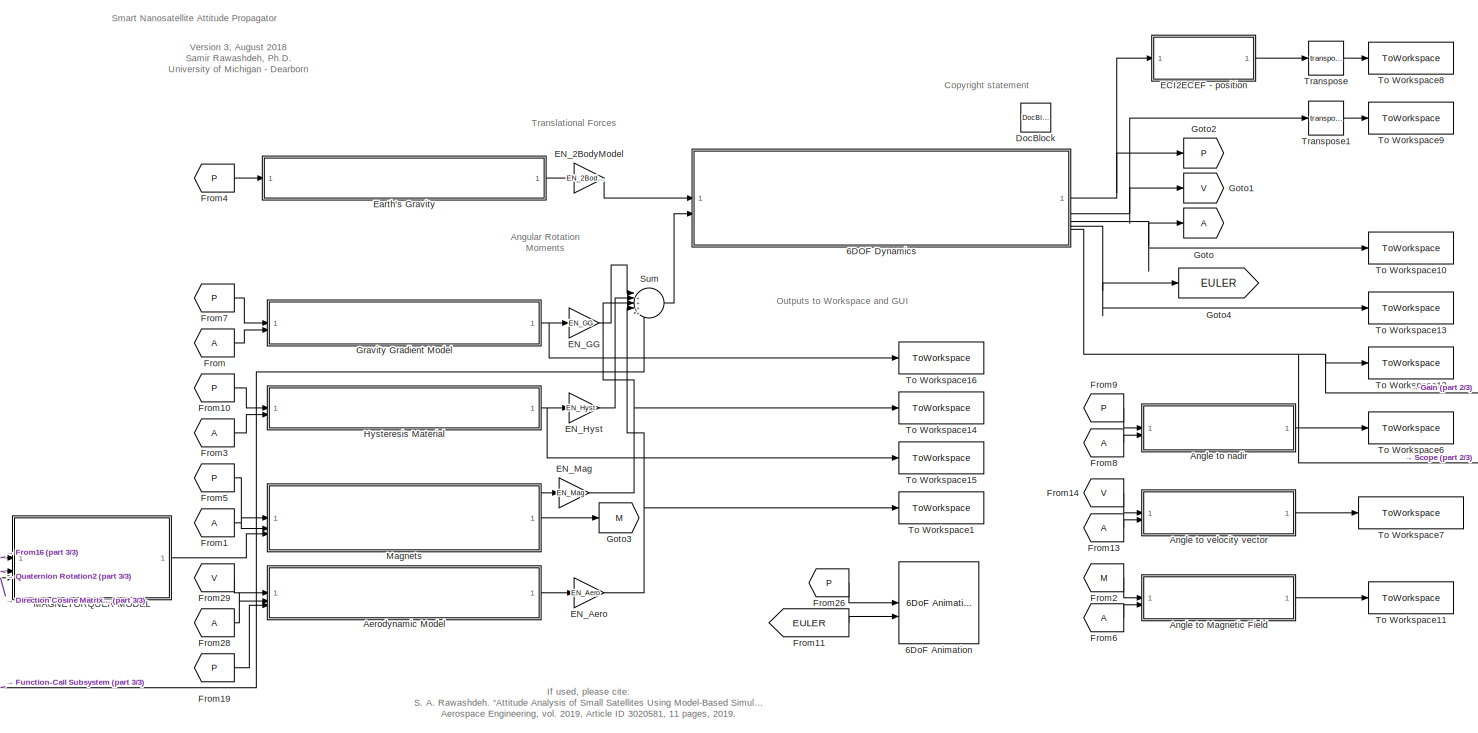
[diagram: root canvas - part 1/3, central region]
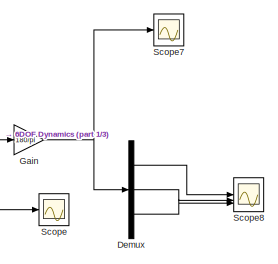
[diagram: root canvas - part 2/3, middle right region]
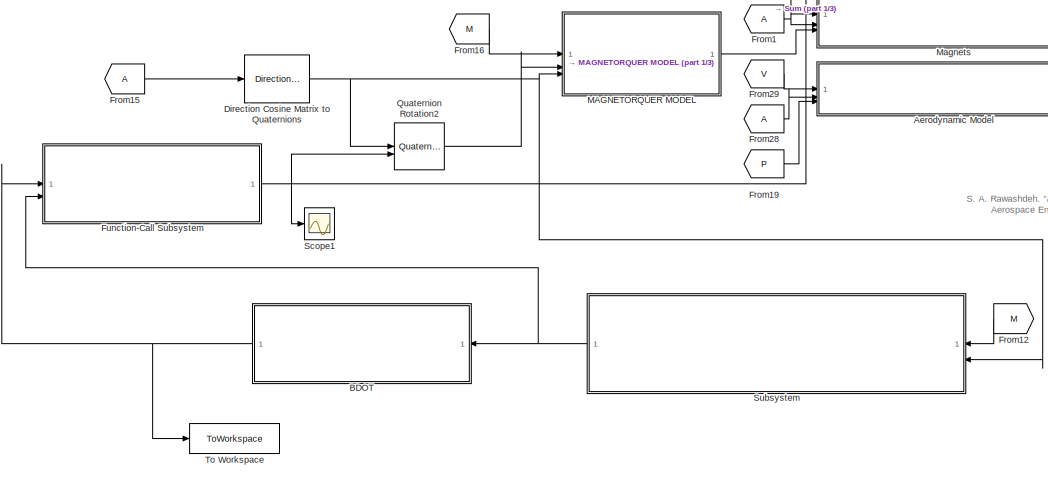
[diagram: root canvas - part 3/3, bottom left region]
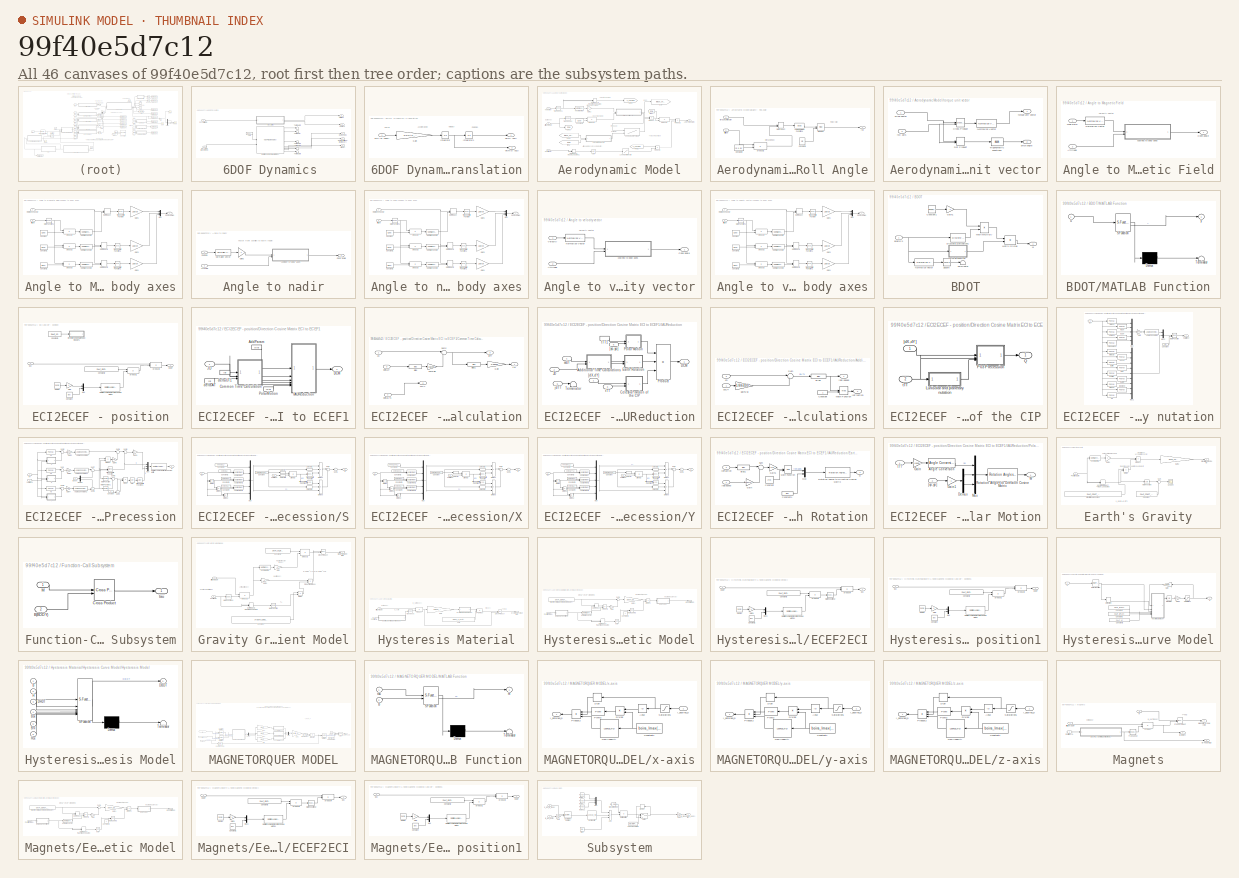
[diagram: thumbnail index - all 46 canvases of the model, root first then tree order]
MODEL slx_99f40e5d7c12
KIND model
CONFIG AbsTol = auto
CONFIG EnableMultiTasking = on
CONFIG FixedStep = 0.1
CONFIG InitFcn = SNAP_Simulink_Init_Function
CONFIG MaxStep = 10
CONFIG MinStep = 0.01
CONFIG RelTol = 1e-2
CONFIG SampleTimeConstraint = Unconstrained
CONFIG SolverName = ode45
CONFIG StartTime = 0.0
CONFIG StopTime = SNAP_sim_length
BLOCK [SubSystem] 6DOF Dynamics 
BLOCK [Outport] 6DOF Dynamics /DCMbe (Attitude) [ECI to Body]
  Port = 3
BLOCK [Outport] 6DOF Dynamics /Euler Angles
  Port = 4
BLOCK [Inport] 6DOF Dynamics /Fxyz (N)  [ECI]
BLOCK [Inport] 6DOF Dynamics /Mxyz (N.m) [Body-fixed]
  Port = 2
BLOCK [Reference] 6DOF Dynamics /Rotations - 6DoF (Quaternion)  REF=aerolibobsolete/6DoF (Euler Angles)
  SourceBlock = aerolibobsolete/6DoF (Euler Angles)
  SourceType = 6DoF EoM (Body Axis)
BLOCK [Terminator] 6DOF Dynamics /Terminator
BLOCK [Terminator] 6DOF Dynamics /Terminator1
BLOCK [Terminator] 6DOF Dynamics /Terminator2
BLOCK [Terminator] 6DOF Dynamics /Terminator3
BLOCK [Terminator] 6DOF Dynamics /Terminator5
BLOCK [SubSystem] 6DOF Dynamics /Translation
BLOCK [Inport] 6DOF Dynamics /Translation/Fxyz (N) (inECI)
BLOCK [Gain] 6DOF Dynamics /Translation/Gain
  Gain = 1/SNAP_sat_mass
BLOCK [Integrator] 6DOF Dynamics /Translation/Integrator
  InitialCondition = initial_velocity
BLOCK [Integrator] 6DOF Dynamics /Translation/Integrator1
  InitialCondition = initial_position
BLOCK [Outport] 6DOF Dynamics /Translation/Ve(m//s) (ECI)
  Port = 2
BLOCK [Outport] 6DOF Dynamics /Translation/Xe(m) (ECI)
BLOCK [Outport] 6DOF Dynamics /V (m//s) [ECI]
  Port = 2
BLOCK [Outport] 6DOF Dynamics /X (m) [ECI]
BLOCK [Outport] 6DOF Dynamics /w (rad//s)
  Port = 5
BLOCK [Constant] 6DOF Dynamics /zero
  Value = [0 0 0]
BLOCK [Reference] 6DoF Animation  REF=aerolibanim/6DoF Animation
  SourceBlock = aerolibanim/6DoF Animation
  SourceType = 6DoF_Animation
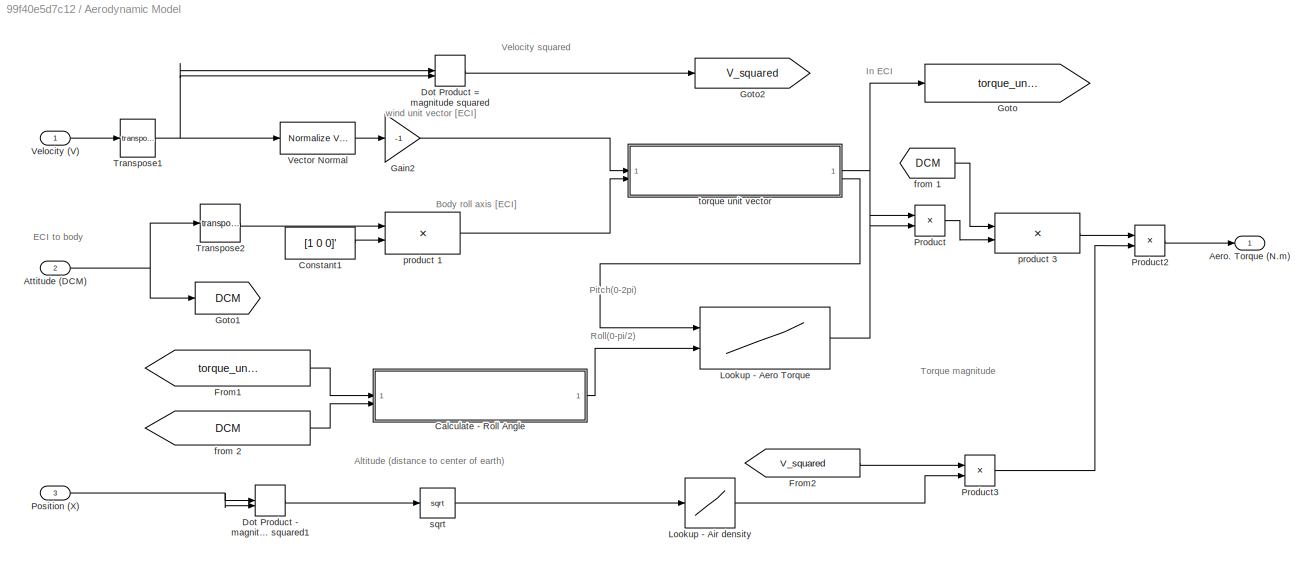
BLOCK [SubSystem] Aerodynamic Model
BLOCK [Outport] Aerodynamic Model/Aero. Torque (N.m)
BLOCK [Inport] Aerodynamic Model/Attitude (DCM)
  Port = 2
BLOCK [SubSystem] Aerodynamic Model/Calculate - Roll Angle
BLOCK [Constant] Aerodynamic Model/Calculate - Roll Angle/Constant2
  Value = [0 1 0]'
BLOCK [Constant] Aerodynamic Model/Calculate - Roll Angle/Constant3
  Value = pi/2
BLOCK [DotProduct] Aerodynamic Model/Calculate - Roll Angle/Dot Product
  OutDataTypeStr = Inherit: Inherit via internal rule
BLOCK [Math] Aerodynamic Model/Calculate - Roll Angle/Modulus
  Operator = mod
  SignedPower = on
BLOCK [Trigonometry] Aerodynamic Model/Calculate - Roll Angle/Trigonometric Function1
  Operator = acos
BLOCK [Inport] Aerodynamic Model/Calculate - Roll Angle/attitude
  Port = 2
BLOCK [Product] Aerodynamic Model/Calculate - Roll Angle/product 2
  Multiplication = Matrix(*)
  RndMeth = Zero
BLOCK [Outport] Aerodynamic Model/Calculate - Roll Angle/roll
BLOCK [Inport] Aerodynamic Model/Calculate - Roll Angle/torque unit vector
BLOCK [Constant] Aerodynamic Model/Constant1
  Value = [1 0 0]'
BLOCK [DotProduct] Aerodynamic Model/Dot Product - magnitude squared1
  OutDataTypeStr = Inherit: Inherit via internal rule
BLOCK [DotProduct] Aerodynamic Model/Dot Product = magnitude squared
  OutDataTypeStr = Inherit: Inherit via internal rule
BLOCK [From] Aerodynamic Model/From1
  CloseFcn = tagdialog Close
  GotoTag = torque_unit_vector
BLOCK [From] Aerodynamic Model/From2
  CloseFcn = tagdialog Close
  GotoTag = V_squared
BLOCK [Gain] Aerodynamic Model/Gain2
  Gain = -1
BLOCK [Goto] Aerodynamic Model/Goto
  GotoTag = torque_unit_vector
BLOCK [Goto] Aerodynamic Model/Goto1
  GotoTag = DCM
BLOCK [Goto] Aerodynamic Model/Goto2
  GotoTag = V_squared
BLOCK [Lookup2D] Aerodynamic Model/Lookup - Aero Torque
  ColumnIndex = SNAPaero.roll
  InputSameDT = off
  RowIndex = SNAPaero.pitch
  SaturateOnIntegerOverflow = off
  Table = SNAPaero.T
BLOCK [Lookup] Aerodynamic Model/Lookup - Air density
  InputValues = SNAPaero.alt_range*1000 + SNAP_CONST_r_earth
  SaturateOnIntegerOverflow = off
  Table = SNAPaero.av_density_vs_alt
BLOCK [Inport] Aerodynamic Model/Position (X)
  Port = 3
BLOCK [Product] Aerodynamic Model/Product
  RndMeth = Zero
BLOCK [Product] Aerodynamic Model/Product2
  RndMeth = Zero
BLOCK [Product] Aerodynamic Model/Product3
  RndMeth = Zero
BLOCK [Math] Aerodynamic Model/Transpose1
  Operator = transpose
  SignedPower = on
BLOCK [Math] Aerodynamic Model/Transpose2
  Operator = transpose
  SignedPower = on
BLOCK [Reference] Aerodynamic Model/Vector Normal  REF=vrlib/Utilities/Normalize Vector
  SourceBlock = vrlib/Utilities/Normalize Vector
  SourceType = Normalize Vector
BLOCK [Inport] Aerodynamic Model/Velocity  (V)
BLOCK [From] Aerodynamic Model/from 1
  CloseFcn = tagdialog Close
  GotoTag = DCM
BLOCK [From] Aerodynamic Model/from 2
  CloseFcn = tagdialog Close
  GotoTag = DCM
BLOCK [Product] Aerodynamic Model/product 1
  Multiplication = Matrix(*)
  RndMeth = Zero
BLOCK [Product] Aerodynamic Model/product 3
  Multiplication = Matrix(*)
  RndMeth = Zero
BLOCK [Math] Aerodynamic Model/sqrt
  Operator = sqrt
  SignedPower = on
BLOCK [SubSystem] Aerodynamic Model/torque unit vector
BLOCK [Reference] Aerodynamic Model/torque unit vector/Cross Product  REF=vrlib/Utilities/Cross Product
  SourceBlock = vrlib/Utilities/Cross Product
  SourceType = Cross Product
BLOCK [DotProduct] Aerodynamic Model/torque unit vector/Dot Product
  OutDataTypeStr = Inherit: Inherit via internal rule
BLOCK [Reference] Aerodynamic Model/torque unit vector/Normalize Vector  REF=vrlib/Utilities/Normalize Vector
  SourceBlock = vrlib/Utilities/Normalize Vector
  SourceType = Normalize Vector
BLOCK [Trigonometry] Aerodynamic Model/torque unit vector/Trigonometric Function2
  Operator = acos
BLOCK [Outport] Aerodynamic Model/torque unit vector/pitch angle
  Port = 2
BLOCK [Inport] Aerodynamic Model/torque unit vector/roll axis
  Port = 2
BLOCK [Outport] Aerodynamic Model/torque unit vector/torque unit vector
BLOCK [Inport] Aerodynamic Model/torque unit vector/wind vector
BLOCK [SubSystem] Angle to Magnetic Field
BLOCK [Inport] Angle to Magnetic Field/Attitude
  Port = 2
BLOCK [Outport] Angle to Magnetic Field/Cone angle
BLOCK [Inport] Angle to Magnetic Field/Mag Field
BLOCK [Reference] Angle to Magnetic Field/Normalize Vector  REF=vrlib/Utilities/Normalize Vector
  SourceBlock = vrlib/Utilities/Normalize Vector
  SourceType = Normalize Vector
BLOCK [SubSystem] Angle to Magnetic Field/cosines to body axes
BLOCK [Inport] Angle to Magnetic Field/cosines to body axes/Attitude
  Port = 2
BLOCK [Outport] Angle to Magnetic Field/cosines to body axes/Cone Angles
BLOCK [Constant] Angle to Magnetic Field/cosines to body axes/Constant
  Value = [1 0 0]
BLOCK [Constant] Angle to Magnetic Field/cosines to body axes/Constant1
  Value = [0 1 0]
BLOCK [Constant] Angle to Magnetic Field/cosines to body axes/Constant2
  Value = [0 0 1]
BLOCK [DotProduct] Angle to Magnetic Field/cosines to body axes/Dot Product
  OutDataTypeStr = Inherit: Inherit via internal rule
BLOCK [DotProduct] Angle to Magnetic Field/cosines to body axes/Dot Product1
  OutDataTypeStr = Inherit: Inherit via internal rule
BLOCK [DotProduct] Angle to Magnetic Field/cosines to body axes/Dot Product2
  OutDataTypeStr = Inherit: Inherit via internal rule
BLOCK [Gain] Angle to Magnetic Field/cosines to body axes/Gain1
  Gain = 180/pi
BLOCK [Gain] Angle to Magnetic Field/cosines to body axes/Gain3
  Gain = 180/pi
BLOCK [Gain] Angle to Magnetic Field/cosines to body axes/Gain4
  Gain = 180/pi
BLOCK [Math] Angle to Magnetic Field/cosines to body axes/Math Function1
  Operator = transpose
  SignedPower = on
BLOCK [Mux] Angle to Magnetic Field/cosines to body axes/Mux
  DisplayOption = bar
  Inputs = 3
BLOCK [Reference] Angle to Magnetic Field/cosines to body axes/Normalize Vector1  REF=vrlib/Utilities/Normalize Vector
  SourceBlock = vrlib/Utilities/Normalize Vector
  SourceType = Normalize Vector
BLOCK [Reference] Angle to Magnetic Field/cosines to body axes/Normalize Vector2  REF=vrlib/Utilities/Normalize Vector
  SourceBlock = vrlib/Utilities/Normalize Vector
  SourceType = Normalize Vector
BLOCK [Reference] Angle to Magnetic Field/cosines to body axes/Normalize Vector3  REF=vrlib/Utilities/Normalize Vector
  SourceBlock = vrlib/Utilities/Normalize Vector
  SourceType = Normalize Vector
BLOCK [Inport] Angle to Magnetic Field/cosines to body axes/Reference Vector
BLOCK [Trigonometry] Angle to Magnetic Field/cosines to body axes/Trigonometric Function
  Operator = acos
BLOCK [Trigonometry] Angle to Magnetic Field/cosines to body axes/Trigonometric Function1
  Operator = acos
BLOCK [Trigonometry] Angle to Magnetic Field/cosines to body axes/Trigonometric Function2
  Operator = acos
BLOCK [Product] Angle to Magnetic Field/cosines to body axes/product 1
  Multiplication = Matrix(*)
  RndMeth = Zero
BLOCK [Product] Angle to Magnetic Field/cosines to body axes/product 2
  Multiplication = Matrix(*)
  RndMeth = Zero
BLOCK [Product] Angle to Magnetic Field/cosines to body axes/product 3
  Multiplication = Matrix(*)
  RndMeth = Zero
BLOCK [SubSystem] Angle to nadir
BLOCK [Inport] Angle to nadir/Attitude
  Port = 2
BLOCK [Outport] Angle to nadir/Cone angle
BLOCK [Gain] Angle to nadir/Gain2
  Gain = -1
BLOCK [Reference] Angle to nadir/Normalize Vector  REF=vrlib/Utilities/Normalize Vector
  SourceBlock = vrlib/Utilities/Normalize Vector
  SourceType = Normalize Vector
BLOCK [Inport] Angle to nadir/Position
BLOCK [SubSystem] Angle to nadir/cosines to body axes
BLOCK [Inport] Angle to nadir/cosines to body axes/Attitude
  Port = 2
BLOCK [Outport] Angle to nadir/cosines to body axes/Cone Angles
BLOCK [Constant] Angle to nadir/cosines to body axes/Constant
  Value = [1 0 0]
BLOCK [Constant] Angle to nadir/cosines to body axes/Constant1
  Value = [0 1 0]
BLOCK [Constant] Angle to nadir/cosines to body axes/Constant2
  Value = [0 0 1]
BLOCK [DotProduct] Angle to nadir/cosines to body axes/Dot Product
  OutDataTypeStr = Inherit: Inherit via internal rule
BLOCK [DotProduct] Angle to nadir/cosines to body axes/Dot Product1
  OutDataTypeStr = Inherit: Inherit via internal rule
BLOCK [DotProduct] Angle to nadir/cosines to body axes/Dot Product2
  OutDataTypeStr = Inherit: Inherit via internal rule
BLOCK [Gain] Angle to nadir/cosines to body axes/Gain1
  Gain = 180/pi
BLOCK [Gain] Angle to nadir/cosines to body axes/Gain3
  Gain = 180/pi
BLOCK [Gain] Angle to nadir/cosines to body axes/Gain4
  Gain = 180/pi
BLOCK [Math] Angle to nadir/cosines to body axes/Math Function1
  Operator = transpose
  SignedPower = on
BLOCK [Mux] Angle to nadir/cosines to body axes/Mux
  DisplayOption = bar
  Inputs = 3
BLOCK [Reference] Angle to nadir/cosines to body axes/Normalize Vector1  REF=vrlib/Utilities/Normalize Vector
  SourceBlock = vrlib/Utilities/Normalize Vector
  SourceType = Normalize Vector
BLOCK [Reference] Angle to nadir/cosines to body axes/Normalize Vector2  REF=vrlib/Utilities/Normalize Vector
  SourceBlock = vrlib/Utilities/Normalize Vector
  SourceType = Normalize Vector
BLOCK [Reference] Angle to nadir/cosines to body axes/Normalize Vector3  REF=vrlib/Utilities/Normalize Vector
  SourceBlock = vrlib/Utilities/Normalize Vector
  SourceType = Normalize Vector
BLOCK [Inport] Angle to nadir/cosines to body axes/Reference Vector
BLOCK [Trigonometry] Angle to nadir/cosines to body axes/Trigonometric Function
  Operator = acos
BLOCK [Trigonometry] Angle to nadir/cosines to body axes/Trigonometric Function1
  Operator = acos
BLOCK [Trigonometry] Angle to nadir/cosines to body axes/Trigonometric Function2
  Operator = acos
BLOCK [Product] Angle to nadir/cosines to body axes/product 1
  Multiplication = Matrix(*)
  RndMeth = Zero
BLOCK [Product] Angle to nadir/cosines to body axes/product 2
  Multiplication = Matrix(*)
  RndMeth = Zero
BLOCK [Product] Angle to nadir/cosines to body axes/product 3
  Multiplication = Matrix(*)
  RndMeth = Zero
BLOCK [SubSystem] Angle to velocity vector
BLOCK [Inport] Angle to velocity vector/Attitude
  Port = 2
BLOCK [Outport] Angle to velocity vector/Cone angle
BLOCK [Reference] Angle to velocity vector/Normalize Vector  REF=vrlib/Utilities/Normalize Vector
  SourceBlock = vrlib/Utilities/Normalize Vector
  SourceType = Normalize Vector
BLOCK [Inport] Angle to velocity vector/Velocity
BLOCK [SubSystem] Angle to velocity vector/cosines to body axes
BLOCK [Inport] Angle to velocity vector/cosines to body axes/Attitude
  Port = 2
BLOCK [Outport] Angle to velocity vector/cosines to body axes/Cone Angles
BLOCK [Constant] Angle to velocity vector/cosines to body axes/Constant
  Value = [1 0 0]
BLOCK [Constant] Angle to velocity vector/cosines to body axes/Constant1
  Value = [0 1 0]
BLOCK [Constant] Angle to velocity vector/cosines to body axes/Constant2
  Value = [0 0 1]
BLOCK [DotProduct] Angle to velocity vector/cosines to body axes/Dot Product
  OutDataTypeStr = Inherit: Inherit via internal rule
BLOCK [DotProduct] Angle to velocity vector/cosines to body axes/Dot Product1
  OutDataTypeStr = Inherit: Inherit via internal rule
BLOCK [DotProduct] Angle to velocity vector/cosines to body axes/Dot Product2
  OutDataTypeStr = Inherit: Inherit via internal rule
BLOCK [Gain] Angle to velocity vector/cosines to body axes/Gain1
  Gain = 180/pi
BLOCK [Gain] Angle to velocity vector/cosines to body axes/Gain3
  Gain = 180/pi
BLOCK [Gain] Angle to velocity vector/cosines to body axes/Gain4
  Gain = 180/pi
BLOCK [Math] Angle to velocity vector/cosines to body axes/Math Function1
  Operator = transpose
  SignedPower = on
BLOCK [Mux] Angle to velocity vector/cosines to body axes/Mux
  DisplayOption = bar
  Inputs = 3
BLOCK [Reference] Angle to velocity vector/cosines to body axes/Normalize Vector1  REF=vrlib/Utilities/Normalize Vector
  SourceBlock = vrlib/Utilities/Normalize Vector
  SourceType = Normalize Vector
BLOCK [Reference] Angle to velocity vector/cosines to body axes/Normalize Vector2  REF=vrlib/Utilities/Normalize Vector
  SourceBlock = vrlib/Utilities/Normalize Vector
  SourceType = Normalize Vector
BLOCK [Reference] Angle to velocity vector/cosines to body axes/Normalize Vector3  REF=vrlib/Utilities/Normalize Vector
  SourceBlock = vrlib/Utilities/Normalize Vector
  SourceType = Normalize Vector
BLOCK [Inport] Angle to velocity vector/cosines to body axes/Reference Vector
BLOCK [Trigonometry] Angle to velocity vector/cosines to body axes/Trigonometric Function
  Operator = acos
BLOCK [Trigonometry] Angle to velocity vector/cosines to body axes/Trigonometric Function1
  Operator = acos
BLOCK [Trigonometry] Angle to velocity vector/cosines to body axes/Trigonometric Function2
  Operator = acos
BLOCK [Product] Angle to velocity vector/cosines to body axes/product 1
  Multiplication = Matrix(*)
  RndMeth = Zero
BLOCK [Product] Angle to velocity vector/cosines to body axes/product 2
  Multiplication = Matrix(*)
  RndMeth = Zero
BLOCK [Product] Angle to velocity vector/cosines to body axes/product 3
  Multiplication = Matrix(*)
  RndMeth = Zero
BLOCK [SubSystem] BDOT
  NameLocation = top
BLOCK [Inport] BDOT/B(BODY)
BLOCK [Constant] BDOT/Constant1
  Value = [0.6,0,0;0,0.5,0;0,0,0.4]
BLOCK [Reference] BDOT/Discrete Derivative1  REF=simulink/Discrete/Discrete Derivative
  SourceBlock = simulink/Discrete/Discrete Derivative
  SourceType = Discrete Derivative
BLOCK [Gain] BDOT/Gain1
  Gain = -1
BLOCK [Outport] BDOT/M
BLOCK [SubSystem] BDOT/MATLAB Function
  ErrorFcn = Stateflow.Translate.translate
  PermitHierarchicalResolution = ExplicitOnly
  SFBlockType = MATLAB Function
  TreatAsAtomicUnit = on
BLOCK [Demux] BDOT/MATLAB Function/ Demux 
  Outputs = 1
BLOCK [S-Function] BDOT/MATLAB Function/ SFunction 
  EnableBusSupport = on
  FunctionName = sf_sfun
  PortCounts = [1 2]
  SFcnIsStateOwnerBlock = off
  SFunctionDeploymentMode = off
  Tag = Stateflow S-Function 5
BLOCK [Terminator] BDOT/MATLAB Function/ Terminator 
BLOCK [Inport] BDOT/MATLAB Function/u
BLOCK [Outport] BDOT/MATLAB Function/y
  VectorParamsAs1DForOutWhenUnconnected = off
BLOCK [Product] BDOT/Matrix Divide
  Inputs = */
  Multiplication = Matrix(*)
BLOCK [Product] BDOT/MatrixMultiply
  Multiplication = Matrix(*)
BLOCK [Reference] BDOT/Normalize Vector  REF=vrlib/Utilities/Normalize Vector
  SourceBlock = vrlib/Utilities/Normalize Vector
  SourceType = Normalize Vector
BLOCK [Math] BDOT/Square
  Operator = square
BLOCK [Terminator] BDOT/Terminator
BLOCK [Demux] Demux
  Outputs = 3
BLOCK [Reference] Direction Cosine Matrix to Quaternions  REF=sharedtransform/Direction Cosine Matrix 
to Quaternions
  LibrarySourceBlock = aerolibtransform2/Direction Cosine Matrix \nto Quaternions
  SourceBlock = sharedtransform/Direction Cosine Matrix \nto Quaternions
  SourceType = DCM2Quaternion
BLOCK [Reference] DocBlock  REF=simulink/Model-Wide
Utilities/DocBlock
  SourceBlock = simulink/Model-Wide\nUtilities/DocBlock
  SourceType = DocBlock
  UserDataPersistent = on
BLOCK [SubSystem] ECI2ECEF - position
BLOCK [Constant] ECI2ECEF - position/Constant
  Value = [0 0]
BLOCK [Constant] ECI2ECEF - position/Constant1
  Commented = on
  Value = SNAP_JD
BLOCK [Constant] ECI2ECEF - position/Constant2
  Value = SNAP_starting_ECI2ECEF_dcm
BLOCK [SubSystem] ECI2ECEF - position/Direction Cosine Matrix ECI to ECEF1
  AncestorBlock = aerolibtransform2/Direction Cosine Matrix\nECI to ECEF
  AttributesFormatString = %<red>
  Commented = on
BLOCK [Constant] ECI2ECEF - position/Direction Cosine Matrix ECI to ECEF1/AddParam
  Value = [0  0]
BLOCK [SubSystem] ECI2ECEF - position/Direction Cosine Matrix ECI to ECEF1/Common Time Calculation
BLOCK [Bias] ECI2ECEF - position/Direction Cosine Matrix ECI to ECEF1/Common Time Calculation/Bias
  Bias = 32.184
  SaturateOnIntegerOverflow = off
BLOCK [Bias] ECI2ECEF - position/Direction Cosine Matrix ECI to ECEF1/Common Time Calculation/Bias1
  Bias = -51544.5
  SaturateOnIntegerOverflow = off
BLOCK [Gain] ECI2ECEF - position/Direction Cosine Matrix ECI to ECEF1/Common Time Calculation/Gain
  Gain = 1/36525
BLOCK [Inport] ECI2ECEF - position/Direction Cosine Matrix ECI to ECEF1/Common Time Calculation/JD
BLOCK [Sum] ECI2ECEF - position/Direction Cosine Matrix ECI to ECEF1/Common Time Calculation/Sum2
  Inputs = |++
BLOCK [Inport] ECI2ECEF - position/Direction Cosine Matrix ECI to ECEF1/Common Time Calculation/deltaAT
  Port = 3
BLOCK [Inport] ECI2ECEF - position/Direction Cosine Matrix ECI to ECEF1/Common Time Calculation/deltaUT1
  Port = 2
BLOCK [Outport] ECI2ECEF - position/Direction Cosine Matrix ECI to ECEF1/Common Time Calculation/jdTT
  Port = 3
BLOCK [Gain] ECI2ECEF - position/Direction Cosine Matrix ECI to ECEF1/Common Time Calculation/secGain
  Gain = 1/86400
BLOCK [Outport] ECI2ECEF - position/Direction Cosine Matrix ECI to ECEF1/Common Time Calculation/ssUT
  Port = 2
BLOCK [Outport] ECI2ECEF - position/Direction Cosine Matrix ECI to ECEF1/Common Time Calculation/tTT
BLOCK [Outport] ECI2ECEF - position/Direction Cosine Matrix ECI to ECEF1/DCM
BLOCK [SubSystem] ECI2ECEF - position/Direction Cosine Matrix ECI to ECEF1/IAUReduction
  AncestorBlock = aerolibtransform2sys/IAU20002006
BLOCK [SubSystem] ECI2ECEF - position/Direction Cosine Matrix ECI to ECEF1/IAUReduction/Additional Time Calculations
BLOCK [Bias] ECI2ECEF - position/Direction Cosine Matrix ECI to ECEF1/IAUReduction/Additional Time Calculations/Bias
  Bias = -51544.5
  SaturateOnIntegerOverflow = off
BLOCK [Constant] ECI2ECEF - position/Direction Cosine Matrix ECI to ECEF1/IAUReduction/Additional Time Calculations/Constant
BLOCK [Inport] ECI2ECEF - position/Direction Cosine Matrix ECI to ECEF1/IAUReduction/Additional Time Calculations/JD 
  Port = 2
BLOCK [Math] ECI2ECEF - position/Direction Cosine Matrix ECI to ECEF1/IAUReduction/Additional Time Calculations/Math Function
  Operator = mod
  SignedPower = on
BLOCK [Sum] ECI2ECEF - position/Direction Cosine Matrix ECI to ECEF1/IAUReduction/Additional Time Calculations/Sum
  Inputs = |++
BLOCK [Gain] ECI2ECEF - position/Direction Cosine Matrix ECI to ECEF1/IAUReduction/Additional Time Calculations/gainVal
  Gain = 1/86400
BLOCK [Outport] ECI2ECEF - position/Direction Cosine Matrix ECI to ECEF1/IAUReduction/Additional Time Calculations/jdElapsed
BLOCK [Outport] ECI2ECEF - position/Direction Cosine Matrix ECI to ECEF1/IAUReduction/Additional Time Calculations/jdFraction
  Port = 2
BLOCK [Inport] ECI2ECEF - position/Direction Cosine Matrix ECI to ECEF1/IAUReduction/Additional Time Calculations/ssUT
BLOCK [SubSystem] ECI2ECEF - position/Direction Cosine Matrix ECI to ECEF1/IAUReduction/Celestial motion of the CIP
BLOCK [SubSystem] ECI2ECEF - position/Direction Cosine Matrix ECI to ECEF1/IAUReduction/Celestial motion of the CIP/Lunisolar and planetary nutation
BLOCK [Reference] ECI2ECEF - position/Direction Cosine Matrix ECI to ECEF1/IAUReduction/Celestial motion of the CIP/Lunisolar and planetary nutation/Angle Conversion  REF=aerolibconvert2/Angle Conversion
  SourceBlock = aerolibconvert2/Angle Conversion
  SourceType = Angle Conversion
BLOCK [Constant] ECI2ECEF - position/Direction Cosine Matrix ECI to ECEF1/IAUReduction/Celestial motion of the CIP/Lunisolar and planetary nutation/Constant
  Value = 2*pi
BLOCK [Gain] ECI2ECEF - position/Direction Cosine Matrix ECI to ECEF1/IAUReduction/Celestial motion of the CIP/Lunisolar and planetary nutation/Gain
  Gain = 1/3600
BLOCK [Math] ECI2ECEF - position/Direction Cosine Matrix ECI to ECEF1/IAUReduction/Celestial motion of the CIP/Lunisolar and planetary nutation/Math Function
  Operator = mod
  SignedPower = on
BLOCK [Mux] ECI2ECEF - position/Direction Cosine Matrix ECI to ECEF1/IAUReduction/Celestial motion of the CIP/Lunisolar and planetary nutation/Mux
  DisplayOption = bar
  Inputs = 5
BLOCK [Mux] ECI2ECEF - position/Direction Cosine Matrix ECI to ECEF1/IAUReduction/Celestial motion of the CIP/Lunisolar and planetary nutation/Mux1
  DisplayOption = bar
  Inputs = 9
BLOCK [Mux] ECI2ECEF - position/Direction Cosine Matrix ECI to ECEF1/IAUReduction/Celestial motion of the CIP/Lunisolar and planetary nutation/Mux2
  DisplayOption = bar
  Inputs = 2
BLOCK [Polyval] ECI2ECEF - position/Direction Cosine Matrix ECI to ECEF1/IAUReduction/Celestial motion of the CIP/Lunisolar and planetary nutation/dSun
  Coefs = [-0.00003169 0.006593 -6.3706 1602961601.2090 1072260.703692]
BLOCK [Polyval] ECI2ECEF - position/Direction Cosine Matrix ECI to ECEF1/IAUReduction/Celestial motion of the CIP/Lunisolar and planetary nutation/lEarth
  Coefs = [628.3075849991 1.753470314]
BLOCK [Polyval] ECI2ECEF - position/Direction Cosine Matrix ECI to ECEF1/IAUReduction/Celestial motion of the CIP/Lunisolar and planetary nutation/lJupiter
  Coefs = [52.9690962641 0.599546497]
BLOCK [Polyval] ECI2ECEF - position/Direction Cosine Matrix ECI to ECEF1/IAUReduction/Celestial motion of the CIP/Lunisolar and planetary nutation/lMars
  Coefs = [334.06124267 6.203480913]
BLOCK [Polyval] ECI2ECEF - position/Direction Cosine Matrix ECI to ECEF1/IAUReduction/Celestial motion of the CIP/Lunisolar and planetary nutation/lMercury
  Coefs = [2608.7903141574 4.402608842]
BLOCK [Polyval] ECI2ECEF - position/Direction Cosine Matrix ECI to ECEF1/IAUReduction/Celestial motion of the CIP/Lunisolar and planetary nutation/lNeptune
  Coefs = [3.8133035638 5.311886287]
BLOCK [Polyval] ECI2ECEF - position/Direction Cosine Matrix ECI to ECEF1/IAUReduction/Celestial motion of the CIP/Lunisolar and planetary nutation/lSaturn
  Coefs = [21.329910496 0.874016757]
BLOCK [Polyval] ECI2ECEF - position/Direction Cosine Matrix ECI to ECEF1/IAUReduction/Celestial motion of the CIP/Lunisolar and planetary nutation/lUranus
  Coefs = [7.4781598567 5.481293872]
BLOCK [Polyval] ECI2ECEF - position/Direction Cosine Matrix ECI to ECEF1/IAUReduction/Celestial motion of the CIP/Lunisolar and planetary nutation/lVenus
  Coefs = [1021.3285546211 3.176146697]
BLOCK [Polyval] ECI2ECEF - position/Direction Cosine Matrix ECI to ECEF1/IAUReduction/Celestial motion of the CIP/Lunisolar and planetary nutation/mMoon
  Coefs = [-0.00024470 0.051635 31.8792 1717915923.2178 485868.249036]
BLOCK [Polyval] ECI2ECEF - position/Direction Cosine Matrix ECI to ECEF1/IAUReduction/Celestial motion of the CIP/Lunisolar and planetary nutation/mSun
  Coefs = [-0.00001149 0.000136 -0.5532 129596581.0481 1287104.793048]
BLOCK [Outport] ECI2ECEF - position/Direction Cosine Matrix ECI to ECEF1/IAUReduction/Celestial motion of the CIP/Lunisolar and planetary nutation/nutationV
BLOCK [Polyval] ECI2ECEF - position/Direction Cosine Matrix ECI to ECEF1/IAUReduction/Celestial motion of the CIP/Lunisolar and planetary nutation/omegaMoon
  Coefs = [-0.00005939 0.007702 7.4722 -6962890.5431 450160.398036]
BLOCK [Polyval] ECI2ECEF - position/Direction Cosine Matrix ECI to ECEF1/IAUReduction/Celestial motion of the CIP/Lunisolar and planetary nutation/pa
  Coefs = [0.00000538691 0.02438175 0]
BLOCK [Inport] ECI2ECEF - position/Direction Cosine Matrix ECI to ECEF1/IAUReduction/Celestial motion of the CIP/Lunisolar and planetary nutation/tTT
BLOCK [Polyval] ECI2ECEF - position/Direction Cosine Matrix ECI to ECEF1/IAUReduction/Celestial motion of the CIP/Lunisolar and planetary nutation/umMoon
  Coefs = [0.00000417 -0.001037 -12.7512 1739527262.8478 335779.526232]
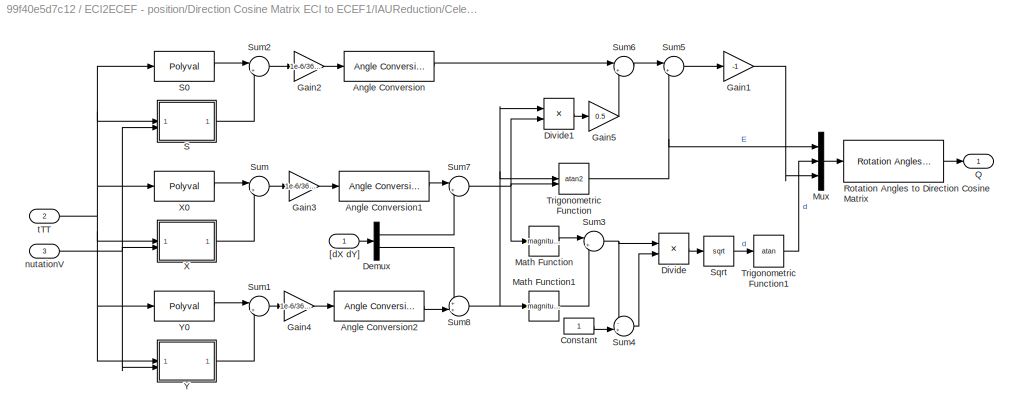
BLOCK [SubSystem] ECI2ECEF - position/Direction Cosine Matrix ECI to ECEF1/IAUReduction/Celestial motion of the CIP/P03 Precession
BLOCK [Reference] ECI2ECEF - position/Direction Cosine Matrix ECI to ECEF1/IAUReduction/Celestial motion of the CIP/P03 Precession/Angle Conversion  REF=aerolibconvert2/Angle Conversion
  SourceBlock = aerolibconvert2/Angle Conversion
  SourceType = Angle Conversion
BLOCK [Reference] ECI2ECEF - position/Direction Cosine Matrix ECI to ECEF1/IAUReduction/Celestial motion of the CIP/P03 Precession/Angle Conversion1  REF=aerolibconvert2/Angle Conversion
  SourceBlock = aerolibconvert2/Angle Conversion
  SourceType = Angle Conversion
BLOCK [Reference] ECI2ECEF - position/Direction Cosine Matrix ECI to ECEF1/IAUReduction/Celestial motion of the CIP/P03 Precession/Angle Conversion2  REF=aerolibconvert2/Angle Conversion
  SourceBlock = aerolibconvert2/Angle Conversion
  SourceType = Angle Conversion
BLOCK [Constant] ECI2ECEF - position/Direction Cosine Matrix ECI to ECEF1/IAUReduction/Celestial motion of the CIP/P03 Precession/Constant
BLOCK [Demux] ECI2ECEF - position/Direction Cosine Matrix ECI to ECEF1/IAUReduction/Celestial motion of the CIP/P03 Precession/Demux
  Outputs = 2
BLOCK [Product] ECI2ECEF - position/Direction Cosine Matrix ECI to ECEF1/IAUReduction/Celestial motion of the CIP/P03 Precession/Divide
  Inputs = */
BLOCK [Product] ECI2ECEF - position/Direction Cosine Matrix ECI to ECEF1/IAUReduction/Celestial motion of the CIP/P03 Precession/Divide1
  Inputs = **
BLOCK [Gain] ECI2ECEF - position/Direction Cosine Matrix ECI to ECEF1/IAUReduction/Celestial motion of the CIP/P03 Precession/Gain1
  Gain = -1
BLOCK [Gain] ECI2ECEF - position/Direction Cosine Matrix ECI to ECEF1/IAUReduction/Celestial motion of the CIP/P03 Precession/Gain2
  Gain = 1e-6/3600
BLOCK [Gain] ECI2ECEF - position/Direction Cosine Matrix ECI to ECEF1/IAUReduction/Celestial motion of the CIP/P03 Precession/Gain3
  Gain = 1e-6/3600
BLOCK [Gain] ECI2ECEF - position/Direction Cosine Matrix ECI to ECEF1/IAUReduction/Celestial motion of the CIP/P03 Precession/Gain4
  Gain = 1e-6/3600
BLOCK [Gain] ECI2ECEF - position/Direction Cosine Matrix ECI to ECEF1/IAUReduction/Celestial motion of the CIP/P03 Precession/Gain5
  Gain = 0.5
BLOCK [Math] ECI2ECEF - position/Direction Cosine Matrix ECI to ECEF1/IAUReduction/Celestial motion of the CIP/P03 Precession/Math Function
  Operator = magnitude^2
  SignedPower = on
BLOCK [Math] ECI2ECEF - position/Direction Cosine Matrix ECI to ECEF1/IAUReduction/Celestial motion of the CIP/P03 Precession/Math Function1
  Operator = magnitude^2
  SignedPower = on
BLOCK [Mux] ECI2ECEF - position/Direction Cosine Matrix ECI to ECEF1/IAUReduction/Celestial motion of the CIP/P03 Precession/Mux
  DisplayOption = bar
  Inputs = 3
BLOCK [Outport] ECI2ECEF - position/Direction Cosine Matrix ECI to ECEF1/IAUReduction/Celestial motion of the CIP/P03 Precession/Q
BLOCK [Reference] ECI2ECEF - position/Direction Cosine Matrix ECI to ECEF1/IAUReduction/Celestial motion of the CIP/P03 Precession/Rotation Angles to Direction Cosine Matrix  REF=sharedtransform/Rotation Angles to
Direction Cosine Matrix
  AttributesFormatString = Rotation Order: %<rotationOrder>
  LibrarySourceBlock = aerolibtransform2/Rotation Angles to\nDirection Cosine Matrix
  SourceBlock = sharedtransform/Rotation Angles to\nDirection Cosine Matrix
  SourceType = Ang2DCM
BLOCK [SubSystem] ECI2ECEF - position/Direction Cosine Matrix ECI to ECEF1/IAUReduction/Celestial motion of the CIP/P03 Precession/S
BLOCK [Assignment] ECI2ECEF - position/Direction Cosine Matrix ECI to ECEF1/IAUReduction/Celestial motion of the CIP/P03 Precession/S/Assignment
  IndexOptions = Assign all
  Indices = 1
  OutputSizes = 1
BLOCK [Assignment] ECI2ECEF - position/Direction Cosine Matrix ECI to ECEF1/IAUReduction/Celestial motion of the CIP/P03 Precession/S/Assignment1
  IndexOptions = Assign all
  Indices = 1
  OutputSizes = 1
BLOCK [Assignment] ECI2ECEF - position/Direction Cosine Matrix ECI to ECEF1/IAUReduction/Celestial motion of the CIP/P03 Precession/S/Assignment2
  IndexOptions = Assign all
  Indices = 1
  OutputSizes = 1
BLOCK [Constant] ECI2ECEF - position/Direction Cosine Matrix ECI to ECEF1/IAUReduction/Celestial motion of the CIP/P03 Precession/S/Constant
  Value = aeroCIP2006.S
BLOCK [Constant] ECI2ECEF - position/Direction Cosine Matrix ECI to ECEF1/IAUReduction/Celestial motion of the CIP/P03 Precession/S/Constant1
  Value = ones(33,1)
BLOCK [Constant] ECI2ECEF - position/Direction Cosine Matrix ECI to ECEF1/IAUReduction/Celestial motion of the CIP/P03 Precession/S/Constant2
  Value = zeros(3,1)
BLOCK [Constant] ECI2ECEF - position/Direction Cosine Matrix ECI to ECEF1/IAUReduction/Celestial motion of the CIP/P03 Precession/S/Constant3
  Value = zeros(25,1)
BLOCK [Constant] ECI2ECEF - position/Direction Cosine Matrix ECI to ECEF1/IAUReduction/Celestial motion of the CIP/P03 Precession/S/Constant4
  Value = zeros(4,1)
BLOCK [Product] ECI2ECEF - position/Direction Cosine Matrix ECI to ECEF1/IAUReduction/Celestial motion of the CIP/P03 Precession/S/Divide
  Inputs = **
BLOCK [Product] ECI2ECEF - position/Direction Cosine Matrix ECI to ECEF1/IAUReduction/Celestial motion of the CIP/P03 Precession/S/Divide1
  Inputs = **
BLOCK [Product] ECI2ECEF - position/Direction Cosine Matrix ECI to ECEF1/IAUReduction/Celestial motion of the CIP/P03 Precession/S/Divide2
  Inputs = **
BLOCK [Product] ECI2ECEF - position/Direction Cosine Matrix ECI to ECEF1/IAUReduction/Celestial motion of the CIP/P03 Precession/S/Divide3
  Inputs = **
  Multiplication = Matrix(*)
BLOCK [Product] ECI2ECEF - position/Direction Cosine Matrix ECI to ECEF1/IAUReduction/Celestial motion of the CIP/P03 Precession/S/Divide4
  Inputs = ***
BLOCK [Product] ECI2ECEF - position/Direction Cosine Matrix ECI to ECEF1/IAUReduction/Celestial motion of the CIP/P03 Precession/S/Divide5
  Inputs = ***
BLOCK [Mux] ECI2ECEF - position/Direction Cosine Matrix ECI to ECEF1/IAUReduction/Celestial motion of the CIP/P03 Precession/S/Mux
  DisplayOption = bar
  Inputs = 5
BLOCK [Outport] ECI2ECEF - position/Direction Cosine Matrix ECI to ECEF1/IAUReduction/Celestial motion of the CIP/P03 Precession/S/S
BLOCK [Selector] ECI2ECEF - position/Direction Cosine Matrix ECI to ECEF1/IAUReduction/Celestial motion of the CIP/P03 Precession/S/Selector
  IndexOptions = Select all,Index vector (dialog)
  Indices = [1 3],[4 5 6 7 8 9 10 11]
  InputPortWidth = 3
  NumberOfDimensions = 2
  OutputSizes = 1,11
BLOCK [Selector] ECI2ECEF - position/Direction Cosine Matrix ECI to ECEF1/IAUReduction/Celestial motion of the CIP/P03 Precession/S/Selector1
  IndexOptions = Select all,Index vector (dialog)
  Indices = [1 3],2
  InputPortWidth = 3
  NumberOfDimensions = 2
  OutputSizes = 1,14
BLOCK [Selector] ECI2ECEF - position/Direction Cosine Matrix ECI to ECEF1/IAUReduction/Celestial motion of the CIP/P03 Precession/S/Selector2
  IndexOptions = Select all,Index vector (dialog)
  Indices = [1 3],3
  InputPortWidth = 3
  NumberOfDimensions = 2
  OutputSizes = 1,14
BLOCK [Selector] ECI2ECEF - position/Direction Cosine Matrix ECI to ECEF1/IAUReduction/Celestial motion of the CIP/P03 Precession/S/Selector3
  IndexOptions = Index vector (dialog)
  Indices = [1 2 3 4 5 7 8 14]
  InputPortWidth = 14
  OutputSizes = 1
BLOCK [Sum] ECI2ECEF - position/Direction Cosine Matrix ECI to ECEF1/IAUReduction/Celestial motion of the CIP/P03 Precession/S/Sum
  Inputs = |++
BLOCK [Sum] ECI2ECEF - position/Direction Cosine Matrix ECI to ECEF1/IAUReduction/Celestial motion of the CIP/P03 Precession/S/Sum1
  Inputs = |+|
BLOCK [Trigonometry] ECI2ECEF - position/Direction Cosine Matrix ECI to ECEF1/IAUReduction/Celestial motion of the CIP/P03 Precession/S/Trigonometric Function
BLOCK [Trigonometry] ECI2ECEF - position/Direction Cosine Matrix ECI to ECEF1/IAUReduction/Celestial motion of the CIP/P03 Precession/S/Trigonometric Function1
  Operator = cos
BLOCK [Inport] ECI2ECEF - position/Direction Cosine Matrix ECI to ECEF1/IAUReduction/Celestial motion of the CIP/P03 Precession/S/nutationV
  Port = 2
BLOCK [Inport] ECI2ECEF - position/Direction Cosine Matrix ECI to ECEF1/IAUReduction/Celestial motion of the CIP/P03 Precession/S/tTT
BLOCK [Polyval] ECI2ECEF - position/Direction Cosine Matrix ECI to ECEF1/IAUReduction/Celestial motion of the CIP/P03 Precession/S0
  Coefs = [15.62 27.98 -72574.11 -122.68 3808.65  94]
BLOCK [Sqrt] ECI2ECEF - position/Direction Cosine Matrix ECI to ECEF1/IAUReduction/Celestial motion of the CIP/P03 Precession/Sqrt
BLOCK [Sum] ECI2ECEF - position/Direction Cosine Matrix ECI to ECEF1/IAUReduction/Celestial motion of the CIP/P03 Precession/Sum
  Inputs = |++
BLOCK [Sum] ECI2ECEF - position/Direction Cosine Matrix ECI to ECEF1/IAUReduction/Celestial motion of the CIP/P03 Precession/Sum1
  Inputs = |++
BLOCK [Sum] ECI2ECEF - position/Direction Cosine Matrix ECI to ECEF1/IAUReduction/Celestial motion of the CIP/P03 Precession/Sum2
  Inputs = |++
BLOCK [Sum] ECI2ECEF - position/Direction Cosine Matrix ECI to ECEF1/IAUReduction/Celestial motion of the CIP/P03 Precession/Sum3
  Inputs = |++
BLOCK [Sum] ECI2ECEF - position/Direction Cosine Matrix ECI to ECEF1/IAUReduction/Celestial motion of the CIP/P03 Precession/Sum4
  Inputs = -+|
BLOCK [Sum] ECI2ECEF - position/Direction Cosine Matrix ECI to ECEF1/IAUReduction/Celestial motion of the CIP/P03 Precession/Sum5
  Inputs = |++
BLOCK [Sum] ECI2ECEF - position/Direction Cosine Matrix ECI to ECEF1/IAUReduction/Celestial motion of the CIP/P03 Precession/Sum6
  Inputs = |+-
BLOCK [Sum] ECI2ECEF - position/Direction Cosine Matrix ECI to ECEF1/IAUReduction/Celestial motion of the CIP/P03 Precession/Sum7
  Inputs = |++
BLOCK [Sum] ECI2ECEF - position/Direction Cosine Matrix ECI to ECEF1/IAUReduction/Celestial motion of the CIP/P03 Precession/Sum8
  Inputs = ++|
BLOCK [Trigonometry] ECI2ECEF - position/Direction Cosine Matrix ECI to ECEF1/IAUReduction/Celestial motion of the CIP/P03 Precession/Trigonometric Function
  Operator = atan2
BLOCK [Trigonometry] ECI2ECEF - position/Direction Cosine Matrix ECI to ECEF1/IAUReduction/Celestial motion of the CIP/P03 Precession/Trigonometric Function1
  Operator = atan
BLOCK [SubSystem] ECI2ECEF - position/Direction Cosine Matrix ECI to ECEF1/IAUReduction/Celestial motion of the CIP/P03 Precession/X
BLOCK [Assignment] ECI2ECEF - position/Direction Cosine Matrix ECI to ECEF1/IAUReduction/Celestial motion of the CIP/P03 Precession/X/Assignment
  IndexOptions = Assign all
  Indices = 1
  OutputSizes = 1
BLOCK [Assignment] ECI2ECEF - position/Direction Cosine Matrix ECI to ECEF1/IAUReduction/Celestial motion of the CIP/P03 Precession/X/Assignment1
  IndexOptions = Assign all
  Indices = 1
  OutputSizes = 1
BLOCK [Assignment] ECI2ECEF - position/Direction Cosine Matrix ECI to ECEF1/IAUReduction/Celestial motion of the CIP/P03 Precession/X/Assignment2
  IndexOptions = Assign all
  Indices = 1
  OutputSizes = 1
BLOCK [Constant] ECI2ECEF - position/Direction Cosine Matrix ECI to ECEF1/IAUReduction/Celestial motion of the CIP/P03 Precession/X/Constant
  Value = aeroCIP2006.X
BLOCK [Constant] ECI2ECEF - position/Direction Cosine Matrix ECI to ECEF1/IAUReduction/Celestial motion of the CIP/P03 Precession/X/Constant1
  Value = ones(1306,1)
BLOCK [Constant] ECI2ECEF - position/Direction Cosine Matrix ECI to ECEF1/IAUReduction/Celestial motion of the CIP/P03 Precession/X/Constant2
  Value = zeros(253,1)
BLOCK [Constant] ECI2ECEF - position/Direction Cosine Matrix ECI to ECEF1/IAUReduction/Celestial motion of the CIP/P03 Precession/X/Constant3
  Value = zeros(36,1)
BLOCK [Constant] ECI2ECEF - position/Direction Cosine Matrix ECI to ECEF1/IAUReduction/Celestial motion of the CIP/P03 Precession/X/Constant4
  Value = zeros(4,1)
BLOCK [Product] ECI2ECEF - position/Direction Cosine Matrix ECI to ECEF1/IAUReduction/Celestial motion of the CIP/P03 Precession/X/Divide
  Inputs = **
BLOCK [Product] ECI2ECEF - position/Direction Cosine Matrix ECI to ECEF1/IAUReduction/Celestial motion of the CIP/P03 Precession/X/Divide1
  Inputs = **
BLOCK [Product] ECI2ECEF - position/Direction Cosine Matrix ECI to ECEF1/IAUReduction/Celestial motion of the CIP/P03 Precession/X/Divide2
  Inputs = **
BLOCK [Product] ECI2ECEF - position/Direction Cosine Matrix ECI to ECEF1/IAUReduction/Celestial motion of the CIP/P03 Precession/X/Divide3
  Inputs = **
  Multiplication = Matrix(*)
BLOCK [Product] ECI2ECEF - position/Direction Cosine Matrix ECI to ECEF1/IAUReduction/Celestial motion of the CIP/P03 Precession/X/Divide4
  Inputs = ***
BLOCK [Product] ECI2ECEF - position/Direction Cosine Matrix ECI to ECEF1/IAUReduction/Celestial motion of the CIP/P03 Precession/X/Divide5
  Inputs = ***
BLOCK [Mux] ECI2ECEF - position/Direction Cosine Matrix ECI to ECEF1/IAUReduction/Celestial motion of the CIP/P03 Precession/X/Mux
  DisplayOption = bar
  Inputs = 5
BLOCK [Selector] ECI2ECEF - position/Direction Cosine Matrix ECI to ECEF1/IAUReduction/Celestial motion of the CIP/P03 Precession/X/Selector
  IndexOptions = Select all,Starting index (dialog)
  Indices = [1 3],4
  InputPortWidth = 3
  NumberOfDimensions = 2
  OutputSizes = 1,14
BLOCK [Selector] ECI2ECEF - position/Direction Cosine Matrix ECI to ECEF1/IAUReduction/Celestial motion of the CIP/P03 Precession/X/Selector1
  IndexOptions = Select all,Index vector (dialog)
  Indices = [1 3],2
  InputPortWidth = 3
  NumberOfDimensions = 2
  OutputSizes = 1,14
BLOCK [Selector] ECI2ECEF - position/Direction Cosine Matrix ECI to ECEF1/IAUReduction/Celestial motion of the CIP/P03 Precession/X/Selector2
  IndexOptions = Select all,Index vector (dialog)
  Indices = [1 3],3
  InputPortWidth = 3
  NumberOfDimensions = 2
  OutputSizes = 1,14
BLOCK [Sum] ECI2ECEF - position/Direction Cosine Matrix ECI to ECEF1/IAUReduction/Celestial motion of the CIP/P03 Precession/X/Sum
  Inputs = |++
BLOCK [Sum] ECI2ECEF - position/Direction Cosine Matrix ECI to ECEF1/IAUReduction/Celestial motion of the CIP/P03 Precession/X/Sum1
  Inputs = |+|
BLOCK [Trigonometry] ECI2ECEF - position/Direction Cosine Matrix ECI to ECEF1/IAUReduction/Celestial motion of the CIP/P03 Precession/X/Trigonometric Function
BLOCK [Trigonometry] ECI2ECEF - position/Direction Cosine Matrix ECI to ECEF1/IAUReduction/Celestial motion of the CIP/P03 Precession/X/Trigonometric Function1
  Operator = cos
BLOCK [Outport] ECI2ECEF - position/Direction Cosine Matrix ECI to ECEF1/IAUReduction/Celestial motion of the CIP/P03 Precession/X/X
BLOCK [Inport] ECI2ECEF - position/Direction Cosine Matrix ECI to ECEF1/IAUReduction/Celestial motion of the CIP/P03 Precession/X/nutationV
  Port = 2
BLOCK [Inport] ECI2ECEF - position/Direction Cosine Matrix ECI to ECEF1/IAUReduction/Celestial motion of the CIP/P03 Precession/X/tTT
BLOCK [Polyval] ECI2ECEF - position/Direction Cosine Matrix ECI to ECEF1/IAUReduction/Celestial motion of the CIP/P03 Precession/X0
  Coefs = [5.9285 7.578 -198618.34 -429782.9 2004191898 -16617]
BLOCK [SubSystem] ECI2ECEF - position/Direction Cosine Matrix ECI to ECEF1/IAUReduction/Celestial motion of the CIP/P03 Precession/Y
BLOCK [Assignment] ECI2ECEF - position/Direction Cosine Matrix ECI to ECEF1/IAUReduction/Celestial motion of the CIP/P03 Precession/Y/Assignment
  IndexOptions = Assign all
  Indices = 1
  OutputSizes = 1
BLOCK [Assignment] ECI2ECEF - position/Direction Cosine Matrix ECI to ECEF1/IAUReduction/Celestial motion of the CIP/P03 Precession/Y/Assignment1
  IndexOptions = Assign all
  Indices = 1
  OutputSizes = 1
BLOCK [Assignment] ECI2ECEF - position/Direction Cosine Matrix ECI to ECEF1/IAUReduction/Celestial motion of the CIP/P03 Precession/Y/Assignment2
  IndexOptions = Assign all
  Indices = 1
  OutputSizes = 1
BLOCK [Constant] ECI2ECEF - position/Direction Cosine Matrix ECI to ECEF1/IAUReduction/Celestial motion of the CIP/P03 Precession/Y/Constant
  Value = aeroCIP2006.Y
BLOCK [Constant] ECI2ECEF - position/Direction Cosine Matrix ECI to ECEF1/IAUReduction/Celestial motion of the CIP/P03 Precession/Y/Constant1
  Value = ones(962,1)
BLOCK [Constant] ECI2ECEF - position/Direction Cosine Matrix ECI to ECEF1/IAUReduction/Celestial motion of the CIP/P03 Precession/Y/Constant2
  Value = zeros(277,1)
BLOCK [Constant] ECI2ECEF - position/Direction Cosine Matrix ECI to ECEF1/IAUReduction/Celestial motion of the CIP/P03 Precession/Y/Constant3
  Value = zeros(30,1)
BLOCK [Constant] ECI2ECEF - position/Direction Cosine Matrix ECI to ECEF1/IAUReduction/Celestial motion of the CIP/P03 Precession/Y/Constant4
  Value = zeros(5,1)
BLOCK [Product] ECI2ECEF - position/Direction Cosine Matrix ECI to ECEF1/IAUReduction/Celestial motion of the CIP/P03 Precession/Y/Divide
  Inputs = **
BLOCK [Product] ECI2ECEF - position/Direction Cosine Matrix ECI to ECEF1/IAUReduction/Celestial motion of the CIP/P03 Precession/Y/Divide1
  Inputs = **
BLOCK [Product] ECI2ECEF - position/Direction Cosine Matrix ECI to ECEF1/IAUReduction/Celestial motion of the CIP/P03 Precession/Y/Divide2
  Inputs = **
BLOCK [Product] ECI2ECEF - position/Direction Cosine Matrix ECI to ECEF1/IAUReduction/Celestial motion of the CIP/P03 Precession/Y/Divide3
  Inputs = **
  Multiplication = Matrix(*)
BLOCK [Product] ECI2ECEF - position/Direction Cosine Matrix ECI to ECEF1/IAUReduction/Celestial motion of the CIP/P03 Precession/Y/Divide4
  Inputs = ***
BLOCK [Product] ECI2ECEF - position/Direction Cosine Matrix ECI to ECEF1/IAUReduction/Celestial motion of the CIP/P03 Precession/Y/Divide5
  Inputs = ***
BLOCK [Mux] ECI2ECEF - position/Direction Cosine Matrix ECI to ECEF1/IAUReduction/Celestial motion of the CIP/P03 Precession/Y/Mux
  DisplayOption = bar
  Inputs = 5
BLOCK [Selector] ECI2ECEF - position/Direction Cosine Matrix ECI to ECEF1/IAUReduction/Celestial motion of the CIP/P03 Precession/Y/Selector
  IndexOptions = Select all,Starting index (dialog)
  Indices = [1 3],4
  InputPortWidth = 3
  NumberOfDimensions = 2
  OutputSizes = 1,14
BLOCK [Selector] ECI2ECEF - position/Direction Cosine Matrix ECI to ECEF1/IAUReduction/Celestial motion of the CIP/P03 Precession/Y/Selector1
  IndexOptions = Select all,Index vector (dialog)
  Indices = [1 3],2
  InputPortWidth = 3
  NumberOfDimensions = 2
  OutputSizes = 1,14
BLOCK [Selector] ECI2ECEF - position/Direction Cosine Matrix ECI to ECEF1/IAUReduction/Celestial motion of the CIP/P03 Precession/Y/Selector2
  IndexOptions = Select all,Index vector (dialog)
  Indices = [1 3],3
  InputPortWidth = 3
  NumberOfDimensions = 2
  OutputSizes = 1,14
BLOCK [Sum] ECI2ECEF - position/Direction Cosine Matrix ECI to ECEF1/IAUReduction/Celestial motion of the CIP/P03 Precession/Y/Sum
  Inputs = |++
BLOCK [Sum] ECI2ECEF - position/Direction Cosine Matrix ECI to ECEF1/IAUReduction/Celestial motion of the CIP/P03 Precession/Y/Sum1
  Inputs = |+|
BLOCK [Trigonometry] ECI2ECEF - position/Direction Cosine Matrix ECI to ECEF1/IAUReduction/Celestial motion of the CIP/P03 Precession/Y/Trigonometric Function
BLOCK [Trigonometry] ECI2ECEF - position/Direction Cosine Matrix ECI to ECEF1/IAUReduction/Celestial motion of the CIP/P03 Precession/Y/Trigonometric Function1
  Operator = cos
BLOCK [Outport] ECI2ECEF - position/Direction Cosine Matrix ECI to ECEF1/IAUReduction/Celestial motion of the CIP/P03 Precession/Y/Y
BLOCK [Inport] ECI2ECEF - position/Direction Cosine Matrix ECI to ECEF1/IAUReduction/Celestial motion of the CIP/P03 Precession/Y/nutationV
  Port = 2
BLOCK [Inport] ECI2ECEF - position/Direction Cosine Matrix ECI to ECEF1/IAUReduction/Celestial motion of the CIP/P03 Precession/Y/tTT
BLOCK [Polyval] ECI2ECEF - position/Direction Cosine Matrix ECI to ECEF1/IAUReduction/Celestial motion of the CIP/P03 Precession/Y0
  Coefs = [0.1358 1112.526 1900.59 -22407274.7 -25896 -6951]
BLOCK [Inport] ECI2ECEF - position/Direction Cosine Matrix ECI to ECEF1/IAUReduction/Celestial motion of the CIP/P03 Precession/[dX dY]
BLOCK [Inport] ECI2ECEF - position/Direction Cosine Matrix ECI to ECEF1/IAUReduction/Celestial motion of the CIP/P03 Precession/nutationV
  Port = 3
BLOCK [Inport] ECI2ECEF - position/Direction Cosine Matrix ECI to ECEF1/IAUReduction/Celestial motion of the CIP/P03 Precession/tTT
  Port = 2
BLOCK [Outport] ECI2ECEF - position/Direction Cosine Matrix ECI to ECEF1/IAUReduction/Celestial motion of the CIP/Q
BLOCK [Inport] ECI2ECEF - position/Direction Cosine Matrix ECI to ECEF1/IAUReduction/Celestial motion of the CIP/[dX,dY]
BLOCK [Inport] ECI2ECEF - position/Direction Cosine Matrix ECI to ECEF1/IAUReduction/Celestial motion of the CIP/tTT
  Port = 2
BLOCK [Outport] ECI2ECEF - position/Direction Cosine Matrix ECI to ECEF1/IAUReduction/DCM
BLOCK [SubSystem] ECI2ECEF - position/Direction Cosine Matrix ECI to ECEF1/IAUReduction/Earth Rotation
BLOCK [Bias] ECI2ECEF - position/Direction Cosine Matrix ECI to ECEF1/IAUReduction/Earth Rotation/Bias1
  Bias = 0.7790572732640
  SaturateOnIntegerOverflow = off
BLOCK [Constant] ECI2ECEF - position/Direction Cosine Matrix ECI to ECEF1/IAUReduction/Earth Rotation/Constant
  Value = 2*pi
BLOCK [Constant] ECI2ECEF - position/Direction Cosine Matrix ECI to ECEF1/IAUReduction/Earth Rotation/Constant1
  Value = [0 0]
BLOCK [Gain] ECI2ECEF - position/Direction Cosine Matrix ECI to ECEF1/IAUReduction/Earth Rotation/Gain
  Gain = 0.00273781191135448
BLOCK [Gain] ECI2ECEF - position/Direction Cosine Matrix ECI to ECEF1/IAUReduction/Earth Rotation/Gain1
  Gain = 2*pi
BLOCK [Math] ECI2ECEF - position/Direction Cosine Matrix ECI to ECEF1/IAUReduction/Earth Rotation/Math Function
  Operator = mod
  SignedPower = on
BLOCK [Mux] ECI2ECEF - position/Direction Cosine Matrix ECI to ECEF1/IAUReduction/Earth Rotation/Mux
  DisplayOption = bar
  Inputs = 2
BLOCK [Outport] ECI2ECEF - position/Direction Cosine Matrix ECI to ECEF1/IAUReduction/Earth Rotation/R
BLOCK [Reference] ECI2ECEF - position/Direction Cosine Matrix ECI to ECEF1/IAUReduction/Earth Rotation/Rotation Angles to Direction Cosine Matrix  REF=sharedtransform/Rotation Angles to
Direction Cosine Matrix
  AttributesFormatString = Rotation Order: %<rotationOrder>
  LibrarySourceBlock = aerolibtransform2/Rotation Angles to\nDirection Cosine Matrix
  SourceBlock = sharedtransform/Rotation Angles to\nDirection Cosine Matrix
  SourceType = Ang2DCM
BLOCK [Sum] ECI2ECEF - position/Direction Cosine Matrix ECI to ECEF1/IAUReduction/Earth Rotation/Sum
  Inputs = |++
BLOCK [Inport] ECI2ECEF - position/Direction Cosine Matrix ECI to ECEF1/IAUReduction/Earth Rotation/jdElapsed
BLOCK [Inport] ECI2ECEF - position/Direction Cosine Matrix ECI to ECEF1/IAUReduction/Earth Rotation/jdFraction
  Port = 2
BLOCK [Inport] ECI2ECEF - position/Direction Cosine Matrix ECI to ECEF1/IAUReduction/JD 
  Port = 2
BLOCK [SubSystem] ECI2ECEF - position/Direction Cosine Matrix ECI to ECEF1/IAUReduction/Polar Motion
BLOCK [Reference] ECI2ECEF - position/Direction Cosine Matrix ECI to ECEF1/IAUReduction/Polar Motion/Angle Conversion  REF=aerolibconvert2/Angle Conversion
  SourceBlock = aerolibconvert2/Angle Conversion
  SourceType = Angle Conversion
BLOCK [Demux] ECI2ECEF - position/Direction Cosine Matrix ECI to ECEF1/IAUReduction/Polar Motion/Demux
  Outputs = 2
BLOCK [Gain] ECI2ECEF - position/Direction Cosine Matrix ECI to ECEF1/IAUReduction/Polar Motion/Gain
  Gain = -0.000047/3600
BLOCK [Gain] ECI2ECEF - position/Direction Cosine Matrix ECI to ECEF1/IAUReduction/Polar Motion/Gain1
  Gain = -1
BLOCK [Mux] ECI2ECEF - position/Direction Cosine Matrix ECI to ECEF1/IAUReduction/Polar Motion/Mux
  DisplayOption = bar
  Inputs = 3
BLOCK [Reference] ECI2ECEF - position/Direction Cosine Matrix ECI to ECEF1/IAUReduction/Polar Motion/Rotation Angles to Direction Cosine Matrix  REF=sharedtransform/Rotation Angles to
Direction Cosine Matrix
  AttributesFormatString = Rotation Order: %<rotationOrder>
  LibrarySourceBlock = aerolibtransform2/Rotation Angles to\nDirection Cosine Matrix
  SourceBlock = sharedtransform/Rotation Angles to\nDirection Cosine Matrix
  SourceType = Ang2DCM
BLOCK [Outport] ECI2ECEF - position/Direction Cosine Matrix ECI to ECEF1/IAUReduction/Polar Motion/W
BLOCK [Inport] ECI2ECEF - position/Direction Cosine Matrix ECI to ECEF1/IAUReduction/Polar Motion/[xp,yp]
  Port = 2
BLOCK [Inport] ECI2ECEF - position/Direction Cosine Matrix ECI to ECEF1/IAUReduction/Polar Motion/tTT
BLOCK [Product] ECI2ECEF - position/Direction Cosine Matrix ECI to ECEF1/IAUReduction/Product
  Inputs = 3
  Multiplication = Matrix(*)
BLOCK [Terminator] ECI2ECEF - position/Direction Cosine Matrix ECI to ECEF1/IAUReduction/Terminator
BLOCK [Inport] ECI2ECEF - position/Direction Cosine Matrix ECI to ECEF1/IAUReduction/[dX,dY]
BLOCK [Inport] ECI2ECEF - position/Direction Cosine Matrix ECI to ECEF1/IAUReduction/[xp,yp]
  Port = 6
BLOCK [Inport] ECI2ECEF - position/Direction Cosine Matrix ECI to ECEF1/IAUReduction/jdTT
  Port = 5
BLOCK [Inport] ECI2ECEF - position/Direction Cosine Matrix ECI to ECEF1/IAUReduction/ssUT
  Port = 4
BLOCK [Inport] ECI2ECEF - position/Direction Cosine Matrix ECI to ECEF1/IAUReduction/tTT
  Port = 3
BLOCK [InportShadow] ECI2ECEF - position/Direction Cosine Matrix ECI to ECEF1/IAUReduction/tTT1
  Port = 3
BLOCK [Inport] ECI2ECEF - position/Direction Cosine Matrix ECI to ECEF1/JD
  OutMin = 0
  PortDimensions = 1
  VarSizeSig = No
BLOCK [Constant] ECI2ECEF - position/Direction Cosine Matrix ECI to ECEF1/PolarMotion
  Value = [0  0]
BLOCK [Constant] ECI2ECEF - position/Direction Cosine Matrix ECI to ECEF1/deltaAT
  Value = [0]
BLOCK [Constant] ECI2ECEF - position/Direction Cosine Matrix ECI to ECEF1/deltaUT1
  Value = [0]
BLOCK [Outport] ECI2ECEF - position/ECEF
BLOCK [Inport] ECI2ECEF - position/ECI
BLOCK [Gain] ECI2ECEF - position/Gain
  Gain = -1
BLOCK [Mux] ECI2ECEF - position/Mux
  DisplayOption = bar
  Inputs = 2
BLOCK [Reference] ECI2ECEF - position/Ramp1  REF=simulink/Sources/Ramp
  SourceBlock = simulink/Sources/Ramp
  SourceType = Ramp
BLOCK [Reference] ECI2ECEF - position/Rotation Angles to Direction Cosine Matrix  REF=sharedtransform/Rotation Angles to
Direction Cosine Matrix
  AttributesFormatString = Rotation Order: %<rotationOrder>
  LibrarySourceBlock = aerolibtransform2/Rotation Angles to\nDirection Cosine Matrix
  SourceBlock = sharedtransform/Rotation Angles to\nDirection Cosine Matrix
  SourceType = Ang2DCM
BLOCK [Product] ECI2ECEF - position/product 1
  Multiplication = Matrix(*)
  RndMeth = Zero
BLOCK [Product] ECI2ECEF - position/product 2
  Multiplication = Matrix(*)
  RndMeth = Zero
BLOCK [Gain] EN_2BodyModel
  Gain = EN_2BodyModel
BLOCK [Gain] EN_Aero 
  Gain = EN_Aero
BLOCK [Gain] EN_GG
  Gain = EN_GG
BLOCK [Gain] EN_Hyst
  Gain = EN_Hyst
BLOCK [Gain] EN_Mag
  Gain = EN_Mag
BLOCK [SubSystem] Earth's Gravity
BLOCK [Constant] Earth's Gravity/Constant
  Value = SNAP_CONST_r_earth
BLOCK [Product] Earth's Gravity/Divide
  Inputs = */
BLOCK [Gain] Earth's Gravity/Gain1
  Gain = -1
BLOCK [Gain] Earth's Gravity/Gain2
  Gain = SNAP_sat_mass
BLOCK [Constant] Earth's Gravity/Gravitational Constant
  Value = SNAP_CONST_m_earth*SNAP_CONST_G_earth
BLOCK [Outport] Earth's Gravity/Gravitational Force (N)
BLOCK [Math] Earth's Gravity/Math Function
  Operator = sqrt
  SignedPower = on
BLOCK [Inport] Earth's Gravity/Position ECI (X)
BLOCK [Product] Earth's Gravity/Product
  RndMeth = Zero
BLOCK [Scope] Earth's Gravity/Scope4
  Floating = off
  NumInputPorts = 1
  ScopeSpecificationString = C++SS(StrPVP('Location','[426, 242, 750, 481]'),StrPVP('Open','off'),StrPVP('ZoomMode','yonly'),MxPVP('AxesTitles',54,'struct(''axes1'',''%<SignalLabel>'')'),StrPVP('ShowLegends','off'),StrPVP('YMin','332500'),StrPVP('YMax','355000'),StrPVP('SaveName','ScopeData9'),StrPVP('DataFormat','StructureWithTime'),StrPVP('BlockParamSampleTime','0'),StrPVP('ScrollMode','off'),StrPVP('LimitDataPoints','on'),...<+63ch>
BLOCK [Sum] Earth's Gravity/Sum
  Inputs = |+-
BLOCK [DotProduct] Earth's Gravity/Vector Dot Product = magnitude squared
  OutDataTypeStr = Inherit: Inherit via internal rule
BLOCK [Reference] Earth's Gravity/Vector Normal  REF=vrlib/Utilities/Normalize Vector
  SourceBlock = vrlib/Utilities/Normalize Vector
  SourceType = Normalize Vector
BLOCK [From] From
  CloseFcn = tagdialog Close
BLOCK [From] From1
  CloseFcn = tagdialog Close
BLOCK [From] From10
  CloseFcn = tagdialog Close
  GotoTag = P
BLOCK [From] From11
  CloseFcn = tagdialog Close
  GotoTag = EULER
BLOCK [From] From12
  GotoTag = M
  NameLocation = top
BLOCK [From] From13
  CloseFcn = tagdialog Close
BLOCK [From] From14
  CloseFcn = tagdialog Close
  GotoTag = V
BLOCK [From] From15
BLOCK [From] From16
  GotoTag = M
BLOCK [From] From19
  CloseFcn = tagdialog Close
  GotoTag = P
BLOCK [From] From2
  CloseFcn = tagdialog Close
  GotoTag = M
BLOCK [From] From26
  CloseFcn = tagdialog Close
  GotoTag = P
BLOCK [From] From28
  CloseFcn = tagdialog Close
BLOCK [From] From29
  CloseFcn = tagdialog Close
  GotoTag = V
BLOCK [From] From3
  CloseFcn = tagdialog Close
BLOCK [From] From4
  CloseFcn = tagdialog Close
  GotoTag = P
BLOCK [From] From5
  CloseFcn = tagdialog Close
  GotoTag = P
BLOCK [From] From6
  CloseFcn = tagdialog Close
BLOCK [From] From7
  CloseFcn = tagdialog Close
  GotoTag = P
BLOCK [From] From8
  CloseFcn = tagdialog Close
BLOCK [From] From9
  CloseFcn = tagdialog Close
  GotoTag = P
BLOCK [SubSystem] Function-Call Subsystem
  TreatAsAtomicUnit = on
BLOCK [Inport] Function-Call Subsystem/B(BODY)
  Port = 2
BLOCK [Reference] Function-Call Subsystem/Cross Product  REF=matrix_library/Cross Product
  LibrarySourceBlock = simulink/Matrix\nOperations/Cross Product
  SourceBlock = matrix_library/Cross Product
  SourceType = CrossProduct
BLOCK [Inport] Function-Call Subsystem/M
BLOCK [Outport] Function-Call Subsystem/tau
BLOCK [Gain] Gain
  Gain = 180/pi
BLOCK [Goto] Goto
BLOCK [Goto] Goto1
  GotoTag = V
BLOCK [Goto] Goto2
  GotoTag = P
BLOCK [Goto] Goto3
  GotoTag = M
BLOCK [Goto] Goto4
  GotoTag = EULER
BLOCK [SubSystem] Gravity Gradient Model
BLOCK [Inport] Gravity Gradient Model/Attitude (DCM)
  Port = 2
BLOCK [Constant] Gravity Gradient Model/Constant
  Value = 3*SNAP_CONST_m_earth*SNAP_CONST_G_earth
BLOCK [Constant] Gravity Gradient Model/Constant1
  Value = SNAP_sat_inertia
BLOCK [Reference] Gravity Gradient Model/Cross Product  REF=vrlib/Utilities/Cross Product
  SourceBlock = vrlib/Utilities/Cross Product
  SourceType = Cross Product
BLOCK [Product] Gravity Gradient Model/Divide
  Inputs = */
BLOCK [DotProduct] Gravity Gradient Model/Dot Product = magnitude squared
  OutDataTypeStr = Inherit: Inherit via internal rule
BLOCK [Gain] Gravity Gradient Model/Gain
  Gain = -1
BLOCK [Gain] Gravity Gradient Model/Gain1
  Gain = -1
BLOCK [Outport] Gravity Gradient Model/Gravity Gradient (N.m)
BLOCK [Math] Gravity Gradient Model/Math Function
  Operator = square
  SignedPower = on
BLOCK [Math] Gravity Gradient Model/Math Function1
  Operator = transpose
  SignedPower = on
BLOCK [Inport] Gravity Gradient Model/Position (X)
BLOCK [Product] Gravity Gradient Model/Product (not cross)
  RndMeth = Zero
BLOCK [Reference] Gravity Gradient Model/Vector Normal  REF=vrlib/Utilities/Normalize Vector
  SourceBlock = vrlib/Utilities/Normalize Vector
  SourceType = Normalize Vector
BLOCK [Product] Gravity Gradient Model/product 1
  Multiplication = Matrix(*)
  RndMeth = Zero
BLOCK [Product] Gravity Gradient Model/product 2
  Multiplication = Matrix(*)
  RndMeth = Zero
BLOCK [SubSystem] Hysteresis Material
BLOCK [Inport] Hysteresis Material/Attitude (DCM)
  Port = 2
BLOCK [Reference] Hysteresis Material/Cross Product  REF=vrlib/Utilities/Cross Product
  SourceBlock = vrlib/Utilities/Cross Product
  SourceType = Cross Product
BLOCK [SubSystem] Hysteresis Material/Eearth L-Shell Magnetic Model
BLOCK [Outport] Hysteresis Material/Eearth L-Shell Magnetic Model/B (Tesla) in ECI
BLOCK [Constant] Hysteresis Material/Eearth L-Shell Magnetic Model/Constant3
  Value = 3
BLOCK [Product] Hysteresis Material/Eearth L-Shell Magnetic Model/Divide1
  Inputs = */
BLOCK [DotProduct] Hysteresis Material/Eearth L-Shell Magnetic Model/Dot Product
  OutDataTypeStr = Inherit: Inherit via internal rule
BLOCK [DotProduct] Hysteresis Material/Eearth L-Shell Magnetic Model/Dot Product - magnitude squared
  OutDataTypeStr = Inherit: Inherit via internal rule
BLOCK [SubSystem] Hysteresis Material/Eearth L-Shell Magnetic Model/ECEF2ECI
  NameLocation = top
BLOCK [Constant] Hysteresis Material/Eearth L-Shell Magnetic Model/ECEF2ECI/Constant1
  Value = [0 0]
BLOCK [Constant] Hysteresis Material/Eearth L-Shell Magnetic Model/ECEF2ECI/Constant3
  Value = SNAP_starting_ECI2ECEF_dcm
BLOCK [Inport] Hysteresis Material/Eearth L-Shell Magnetic Model/ECEF2ECI/ECEF
BLOCK [Outport] Hysteresis Material/Eearth L-Shell Magnetic Model/ECEF2ECI/ECI
BLOCK [Gain] Hysteresis Material/Eearth L-Shell Magnetic Model/ECEF2ECI/Gain1
  Gain = -1
BLOCK [Math] Hysteresis Material/Eearth L-Shell Magnetic Model/ECEF2ECI/Math Function2
  Operator = transpose
  SignedPower = on
BLOCK [Mux] Hysteresis Material/Eearth L-Shell Magnetic Model/ECEF2ECI/Mux1
  DisplayOption = bar
  Inputs = 2
BLOCK [Reference] Hysteresis Material/Eearth L-Shell Magnetic Model/ECEF2ECI/Ramp2  REF=simulink/Sources/Ramp
  SourceBlock = simulink/Sources/Ramp
  SourceType = Ramp
BLOCK [Reference] Hysteresis Material/Eearth L-Shell Magnetic Model/ECEF2ECI/Rotation Angles to Direction Cosine Matrix1  REF=sharedtransform/Rotation Angles to
Direction Cosine Matrix
  AttributesFormatString = Rotation Order: %<rotationOrder>
  LibrarySourceBlock = aerolibtransform2/Rotation Angles to\nDirection Cosine Matrix
  SourceBlock = sharedtransform/Rotation Angles to\nDirection Cosine Matrix
  SourceType = Ang2DCM
BLOCK [Product] Hysteresis Material/Eearth L-Shell Magnetic Model/ECEF2ECI/product 2
  Multiplication = Matrix(*)
  RndMeth = Zero
BLOCK [Product] Hysteresis Material/Eearth L-Shell Magnetic Model/ECEF2ECI/product 4
  Multiplication = Matrix(*)
  RndMeth = Zero
BLOCK [SubSystem] Hysteresis Material/Eearth L-Shell Magnetic Model/ECI2ECEF - position1
BLOCK [Constant] Hysteresis Material/Eearth L-Shell Magnetic Model/ECI2ECEF - position1/Constant
  Value = [0 0]
BLOCK [Constant] Hysteresis Material/Eearth L-Shell Magnetic Model/ECI2ECEF - position1/Constant2
  Value = SNAP_starting_ECI2ECEF_dcm
BLOCK [Outport] Hysteresis Material/Eearth L-Shell Magnetic Model/ECI2ECEF - position1/ECEF
BLOCK [Inport] Hysteresis Material/Eearth L-Shell Magnetic Model/ECI2ECEF - position1/ECI
BLOCK [Gain] Hysteresis Material/Eearth L-Shell Magnetic Model/ECI2ECEF - position1/Gain
  Gain = -1
BLOCK [Mux] Hysteresis Material/Eearth L-Shell Magnetic Model/ECI2ECEF - position1/Mux
  DisplayOption = bar
  Inputs = 2
BLOCK [Reference] Hysteresis Material/Eearth L-Shell Magnetic Model/ECI2ECEF - position1/Ramp1  REF=simulink/Sources/Ramp
  SourceBlock = simulink/Sources/Ramp
  SourceType = Ramp
BLOCK [Reference] Hysteresis Material/Eearth L-Shell Magnetic Model/ECI2ECEF - position1/Rotation Angles to Direction Cosine Matrix  REF=sharedtransform/Rotation Angles to
Direction Cosine Matrix
  AttributesFormatString = Rotation Order: %<rotationOrder>
  LibrarySourceBlock = aerolibtransform2/Rotation Angles to\nDirection Cosine Matrix
  SourceBlock = sharedtransform/Rotation Angles to\nDirection Cosine Matrix
  SourceType = Ang2DCM
BLOCK [Product] Hysteresis Material/Eearth L-Shell Magnetic Model/ECI2ECEF - position1/product 1
  Multiplication = Matrix(*)
  RndMeth = Zero
BLOCK [Product] Hysteresis Material/Eearth L-Shell Magnetic Model/ECI2ECEF - position1/product 2
  Multiplication = Matrix(*)
  RndMeth = Zero
BLOCK [Gain] Hysteresis Material/Eearth L-Shell Magnetic Model/Gain
  Gain = 3
BLOCK [Gain] Hysteresis Material/Eearth L-Shell Magnetic Model/Gain1
  Gain = SNAP_CONST_a3H0
BLOCK [Math] Hysteresis Material/Eearth L-Shell Magnetic Model/Math Cubing
  Operator = pow
  SignedPower = on
BLOCK [Reference] Hysteresis Material/Eearth L-Shell Magnetic Model/Normalize Vector  REF=vrlib/Utilities/Normalize Vector
  SourceBlock = vrlib/Utilities/Normalize Vector
  SourceType = Normalize Vector
BLOCK [Inport] Hysteresis Material/Eearth L-Shell Magnetic Model/Position in ECI
BLOCK [Product] Hysteresis Material/Eearth L-Shell Magnetic Model/Product1
  RndMeth = Zero
BLOCK [Sum] Hysteresis Material/Eearth L-Shell Magnetic Model/Sum1
  Inputs = |-+
BLOCK [Constant] Hysteresis Material/Eearth L-Shell Magnetic Model/m (unit vector, magnetic dipole in ECEF)
  Value = SNAP_CONST_earth_mag_dipole
BLOCK [Math] Hysteresis Material/Eearth L-Shell Magnetic Model/sqrt
  Operator = sqrt
  SignedPower = on
BLOCK [Gain] Hysteresis Material/Gain
  Gain = 1/SNAP_CONST_mu0
BLOCK [SubSystem] Hysteresis Material/Hysteresis Curve Model
BLOCK [Outport] Hysteresis Material/Hysteresis Curve Model/B
BLOCK [Constant] Hysteresis Material/Hysteresis Curve Model/Constant1
  Value = SNAP_Bs* 1e4
BLOCK [Constant] Hysteresis Material/Hysteresis Curve Model/Constant2
  Value = SNAP_Br* 1e4
BLOCK [Constant] Hysteresis Material/Hysteresis Curve Model/Constant3
  Value = SNAP_Hc
BLOCK [Derivative] Hysteresis Material/Hysteresis Curve Model/Derivative
BLOCK [Gain] Hysteresis Material/Hysteresis Curve Model/Gain
  Gain = 10000
BLOCK [Gain] Hysteresis Material/Hysteresis Curve Model/Gain2
  Gain = 1/10000
BLOCK [Inport] Hysteresis Material/Hysteresis Curve Model/H
BLOCK [SubSystem] Hysteresis Material/Hysteresis Curve Model/Hysteresis Model
  ErrorFcn = Stateflow.Translate.translate
  PermitHierarchicalResolution = ExplicitOnly
  SFBlockType = MATLAB Function
  TreatAsAtomicUnit = on
BLOCK [Demux] Hysteresis Material/Hysteresis Curve Model/Hysteresis Model/ Demux 
  Outputs = 1
BLOCK [S-Function] Hysteresis Material/Hysteresis Curve Model/Hysteresis Model/ SFunction 
  EnableBusSupport = on
  FunctionName = sf_sfun
  PortCounts = [6 2]
  SFcnIsStateOwnerBlock = off
  SFunctionDeploymentMode = off
  Tag = Stateflow S-Function 1
BLOCK [Terminator] Hysteresis Material/Hysteresis Curve Model/Hysteresis Model/ Terminator 
BLOCK [Inport] Hysteresis Material/Hysteresis Curve Model/Hysteresis Model/B
BLOCK [Inport] Hysteresis Material/Hysteresis Curve Model/Hysteresis Model/Brx
  Port = 5
BLOCK [Inport] Hysteresis Material/Hysteresis Curve Model/Hysteresis Model/Bsx
  Port = 4
BLOCK [Outport] Hysteresis Material/Hysteresis Curve Model/Hysteresis Model/DBDT
BLOCK [Inport] Hysteresis Material/Hysteresis Curve Model/Hysteresis Model/DHDT
  Port = 3
BLOCK [Inport] Hysteresis Material/Hysteresis Curve Model/Hysteresis Model/H
  Port = 2
BLOCK [Inport] Hysteresis Material/Hysteresis Curve Model/Hysteresis Model/Hcx
  Port = 6
BLOCK [Integrator] Hysteresis Material/Hysteresis Curve Model/Integrator
  InitialCondition = 10000
BLOCK [RateTransition] Hysteresis Material/Hysteresis Curve Model/Rate Transition
  Deterministic = off
  OutPortSampleTime = 0.05
  OutPortSampleTimeOpt = Inherit
BLOCK [Saturate] Hysteresis Material/Hysteresis Curve Model/Saturation1
  LowerLimit = -SNAP_Bs
  UpperLimit = SNAP_Bs
BLOCK [Outport] Hysteresis Material/Hysteresis Torque (N.m)
BLOCK [Inport] Hysteresis Material/Position (X)
BLOCK [Product] Hysteresis Material/Product
  Multiplication = Matrix(*)
  RndMeth = Zero
BLOCK [Math] Hysteresis Material/Transpose
  Operator = transpose
  SignedPower = on
BLOCK [Product] Hysteresis Material/m = B*V//mu0
  NameLocation = top
  RndMeth = Zero
BLOCK [Constant] Hysteresis Material/zero
  Value = SNAP_V_hyst/SNAP_CONST_mu0
BLOCK [SubSystem] MAGNETORQUER MODEL
BLOCK [Inport] MAGNETORQUER MODEL/B
  IconDisplay = Signal name
BLOCK [Constant] MAGNETORQUER MODEL/Constant
  NameLocation = top
  Value = 0
BLOCK [Demux] MAGNETORQUER MODEL/Demux
  Outputs = 3
BLOCK [Gain] MAGNETORQUER MODEL/Gain
  Gain = 1./boira_magnetic_gains(1)
BLOCK [Gain] MAGNETORQUER MODEL/Gain1
  Gain = 1./boira_magnetic_gains(2)
BLOCK [Gain] MAGNETORQUER MODEL/Gain2
  Gain = 1./boira_magnetic_gains(3)
BLOCK [Gain] MAGNETORQUER MODEL/Gain3
  Gain = boira_magnetic_gains
BLOCK [SubSystem] MAGNETORQUER MODEL/MATLAB Function
  ErrorFcn = Stateflow.Translate.translate
  PermitHierarchicalResolution = ExplicitOnly
  SFBlockType = MATLAB Function
  TreatAsAtomicUnit = on
BLOCK [Demux] MAGNETORQUER MODEL/MATLAB Function/ Demux 
  Outputs = 1
BLOCK [S-Function] MAGNETORQUER MODEL/MATLAB Function/ SFunction 
  EnableBusSupport = on
  FunctionName = sf_sfun
  PortCounts = [2 2]
  SFcnIsStateOwnerBlock = off
  SFunctionDeploymentMode = off
  Tag = Stateflow S-Function 3
BLOCK [Terminator] MAGNETORQUER MODEL/MATLAB Function/ Terminator 
BLOCK [Inport] MAGNETORQUER MODEL/MATLAB Function/B
  Port = 2
BLOCK [Outport] MAGNETORQUER MODEL/MATLAB Function/m
BLOCK [Inport] MAGNETORQUER MODEL/MATLAB Function/tau
BLOCK [Product] MAGNETORQUER MODEL/Matrix Multiply
  Multiplication = Matrix(*)
  NameLocation = top
BLOCK [Constant] MAGNETORQUER MODEL/Missalingment
  OutDataTypeStr = Inherit: Inherit via back propagation
  Value = rotm_mtorquer
BLOCK [Mux] MAGNETORQUER MODEL/Mux
  DisplayOption = bar
  Inputs = 3
BLOCK [DiscretePulseGenerator] MAGNETORQUER MODEL/Pulse Generator1
  NameLocation = top
  Period = 1
  PhaseDelay = 0.2
  PulseType = Time based
  PulseWidth = 80
BLOCK [Reference] MAGNETORQUER MODEL/Quaternion Inverse  REF=aerolibutil/Quaternion
Inverse
  SourceBlock = aerolibutil/Quaternion\nInverse
  SourceType = Quaternion Inverse
BLOCK [Reference] MAGNETORQUER MODEL/Quaternion Rotation1  REF=aerolibutil/Quaternion
Rotation
  SourceBlock = aerolibutil/Quaternion\nRotation
  SourceType = Quaternion Rotation
BLOCK [Reference] MAGNETORQUER MODEL/Quaternion Rotation2  REF=aerolibutil/Quaternion
Rotation
  SourceBlock = aerolibutil/Quaternion\nRotation
  SourceType = Quaternion Rotation
BLOCK [Reference] MAGNETORQUER MODEL/Quaternion Rotation3  REF=aerolibutil/Quaternion
Rotation
  SourceBlock = aerolibutil/Quaternion\nRotation
  SourceType = Quaternion Rotation
BLOCK [Switch] MAGNETORQUER MODEL/Switch
  Criteria = u2 > Threshold
  InputSameDT = off
  NameLocation = top
  SaturateOnIntegerOverflow = off
  Threshold = 0.1
BLOCK [Outport] MAGNETORQUER MODEL/m_obtained_ECI
  NameLocation = top
BLOCK [Inport] MAGNETORQUER MODEL/q
  IconDisplay = Signal name
  Port = 3
BLOCK [Inport] MAGNETORQUER MODEL/tau
  IconDisplay = Signal name
  NameLocation = top
  Port = 2
BLOCK [SubSystem] MAGNETORQUER MODEL/x-axis
  NameLocation = top
BLOCK [Abs] MAGNETORQUER MODEL/x-axis/Abs2
  NameLocation = top
BLOCK [Constant] MAGNETORQUER MODEL/x-axis/Constant1
  NameLocation = top
  Value = boira_Imax(1)
BLOCK [Product] MAGNETORQUER MODEL/x-axis/Divide
  Inputs = */
  NameLocation = top
BLOCK [Inport] MAGNETORQUER MODEL/x-axis/I_desired_b
BLOCK [Outport] MAGNETORQUER MODEL/x-axis/I_obtained_b
BLOCK [Lookup_n-D] MAGNETORQUER MODEL/x-axis/Non-linearity
  BreakpointsForDimension1 = lookup_breakpoints_mtorquer
  InputPortMap = u0
  InternalRulePriority = Speed
  NumberOfTableDimensions = 1
  RndMeth = Simplest
  Table = lookup_tabledata_mtorquer
BLOCK [Reference] MAGNETORQUER MODEL/x-axis/PWM2  REF=simulink/Discontinuities/PWM
  DisableCoverage = on
  NameLocation = top
  SourceBlock = simulink/Discontinuities/PWM
  SourceType = PWM
BLOCK [Product] MAGNETORQUER MODEL/x-axis/Product2
  Inputs = 3
  NameLocation = top
BLOCK [Saturate] MAGNETORQUER MODEL/x-axis/Saturation1
  LowerLimit = -boira_Imax(1)
  NameLocation = top
  UpperLimit = boira_Imax(1)
BLOCK [Signum] MAGNETORQUER MODEL/x-axis/Sign
  NameLocation = top
BLOCK [SubSystem] MAGNETORQUER MODEL/y-axis
  NameLocation = top
BLOCK [Abs] MAGNETORQUER MODEL/y-axis/Abs2
  NameLocation = top
BLOCK [Constant] MAGNETORQUER MODEL/y-axis/Constant1
  NameLocation = top
  Value = boira_Imax(2)
BLOCK [Product] MAGNETORQUER MODEL/y-axis/Divide
  Inputs = */
  NameLocation = top
BLOCK [Inport] MAGNETORQUER MODEL/y-axis/I_desired_b
BLOCK [Outport] MAGNETORQUER MODEL/y-axis/I_obtained_b
BLOCK [Lookup_n-D] MAGNETORQUER MODEL/y-axis/Non-linearity
  BreakpointsForDimension1 = lookup_breakpoints_mtorquer
  InputPortMap = u0
  InternalRulePriority = Speed
  NumberOfTableDimensions = 1
  RndMeth = Simplest
  Table = lookup_tabledata_mtorquer
BLOCK [Reference] MAGNETORQUER MODEL/y-axis/PWM2  REF=simulink/Discontinuities/PWM
  DisableCoverage = on
  NameLocation = top
  SourceBlock = simulink/Discontinuities/PWM
  SourceType = PWM
BLOCK [Product] MAGNETORQUER MODEL/y-axis/Product2
  Inputs = 3
  NameLocation = top
BLOCK [Saturate] MAGNETORQUER MODEL/y-axis/Saturation1
  LowerLimit = -boira_Imax(2)
  NameLocation = top
  UpperLimit = boira_Imax(2)
BLOCK [Signum] MAGNETORQUER MODEL/y-axis/Sign
  NameLocation = top
BLOCK [SubSystem] MAGNETORQUER MODEL/z-axis
  NameLocation = top
BLOCK [Abs] MAGNETORQUER MODEL/z-axis/Abs2
  NameLocation = top
BLOCK [Constant] MAGNETORQUER MODEL/z-axis/Constant1
  NameLocation = top
  Value = boira_Imax(3)
BLOCK [Product] MAGNETORQUER MODEL/z-axis/Divide
  Inputs = */
  NameLocation = top
BLOCK [Inport] MAGNETORQUER MODEL/z-axis/I_desired_b
BLOCK [Outport] MAGNETORQUER MODEL/z-axis/I_obtained_b
BLOCK [Lookup_n-D] MAGNETORQUER MODEL/z-axis/Non-linearity
  BreakpointsForDimension1 = lookup_breakpoints_mtorquer
  InputPortMap = u0
  InternalRulePriority = Speed
  NumberOfTableDimensions = 1
  RndMeth = Simplest
  Table = lookup_tabledata_mtorquer
BLOCK [Reference] MAGNETORQUER MODEL/z-axis/PWM2  REF=simulink/Discontinuities/PWM
  DisableCoverage = on
  NameLocation = top
  SourceBlock = simulink/Discontinuities/PWM
  SourceType = PWM
BLOCK [Product] MAGNETORQUER MODEL/z-axis/Product2
  Inputs = 3
  NameLocation = top
BLOCK [Saturate] MAGNETORQUER MODEL/z-axis/Saturation1
  LowerLimit = -boira_Imax(3)
  NameLocation = top
  UpperLimit = boira_Imax(3)
BLOCK [Signum] MAGNETORQUER MODEL/z-axis/Sign
  NameLocation = top
BLOCK [SubSystem] Magnets
BLOCK [Inport] Magnets/Attitude (DCM)
  Port = 2
BLOCK [Outport] Magnets/B (Tesla) [ECI]
  Port = 2
BLOCK [Outport] Magnets/B(BODY)
  Port = 3
BLOCK [Reference] Magnets/Cross Product  REF=vrlib/Utilities/Cross Product
  SourceBlock = vrlib/Utilities/Cross Product
  SourceType = Cross Product
BLOCK [SubSystem] Magnets/Eearth L-Shell Magnetic Model
BLOCK [Outport] Magnets/Eearth L-Shell Magnetic Model/B (Tesla) in ECI
BLOCK [Constant] Magnets/Eearth L-Shell Magnetic Model/Constant3
  Value = 3
BLOCK [Product] Magnets/Eearth L-Shell Magnetic Model/Divide1
  Inputs = */
BLOCK [DotProduct] Magnets/Eearth L-Shell Magnetic Model/Dot Product
  OutDataTypeStr = Inherit: Inherit via internal rule
BLOCK [DotProduct] Magnets/Eearth L-Shell Magnetic Model/Dot Product - magnitude squared
  OutDataTypeStr = Inherit: Inherit via internal rule
BLOCK [SubSystem] Magnets/Eearth L-Shell Magnetic Model/ECEF2ECI
  NameLocation = top
BLOCK [Constant] Magnets/Eearth L-Shell Magnetic Model/ECEF2ECI/Constant1
  Value = [0 0]
BLOCK [Constant] Magnets/Eearth L-Shell Magnetic Model/ECEF2ECI/Constant3
  Value = SNAP_starting_ECI2ECEF_dcm
BLOCK [Inport] Magnets/Eearth L-Shell Magnetic Model/ECEF2ECI/ECEF
BLOCK [Outport] Magnets/Eearth L-Shell Magnetic Model/ECEF2ECI/ECI
BLOCK [Gain] Magnets/Eearth L-Shell Magnetic Model/ECEF2ECI/Gain1
  Gain = -1
BLOCK [Math] Magnets/Eearth L-Shell Magnetic Model/ECEF2ECI/Math Function2
  Operator = transpose
  SignedPower = on
BLOCK [Mux] Magnets/Eearth L-Shell Magnetic Model/ECEF2ECI/Mux1
  DisplayOption = bar
  Inputs = 2
BLOCK [Reference] Magnets/Eearth L-Shell Magnetic Model/ECEF2ECI/Ramp2  REF=simulink/Sources/Ramp
  SourceBlock = simulink/Sources/Ramp
  SourceType = Ramp
BLOCK [Reference] Magnets/Eearth L-Shell Magnetic Model/ECEF2ECI/Rotation Angles to Direction Cosine Matrix1  REF=sharedtransform/Rotation Angles to
Direction Cosine Matrix
  AttributesFormatString = Rotation Order: %<rotationOrder>
  LibrarySourceBlock = aerolibtransform2/Rotation Angles to\nDirection Cosine Matrix
  SourceBlock = sharedtransform/Rotation Angles to\nDirection Cosine Matrix
  SourceType = Ang2DCM
BLOCK [Product] Magnets/Eearth L-Shell Magnetic Model/ECEF2ECI/product 2
  Multiplication = Matrix(*)
  RndMeth = Zero
BLOCK [Product] Magnets/Eearth L-Shell Magnetic Model/ECEF2ECI/product 4
  Multiplication = Matrix(*)
  RndMeth = Zero
BLOCK [SubSystem] Magnets/Eearth L-Shell Magnetic Model/ECI2ECEF - position1
BLOCK [Constant] Magnets/Eearth L-Shell Magnetic Model/ECI2ECEF - position1/Constant
  Value = [0 0]
BLOCK [Constant] Magnets/Eearth L-Shell Magnetic Model/ECI2ECEF - position1/Constant2
  Value = SNAP_starting_ECI2ECEF_dcm
BLOCK [Outport] Magnets/Eearth L-Shell Magnetic Model/ECI2ECEF - position1/ECEF
BLOCK [Inport] Magnets/Eearth L-Shell Magnetic Model/ECI2ECEF - position1/ECI
BLOCK [Gain] Magnets/Eearth L-Shell Magnetic Model/ECI2ECEF - position1/Gain
  Gain = -1
BLOCK [Mux] Magnets/Eearth L-Shell Magnetic Model/ECI2ECEF - position1/Mux
  DisplayOption = bar
  Inputs = 2
BLOCK [Reference] Magnets/Eearth L-Shell Magnetic Model/ECI2ECEF - position1/Ramp1  REF=simulink/Sources/Ramp
  SourceBlock = simulink/Sources/Ramp
  SourceType = Ramp
BLOCK [Reference] Magnets/Eearth L-Shell Magnetic Model/ECI2ECEF - position1/Rotation Angles to Direction Cosine Matrix  REF=sharedtransform/Rotation Angles to
Direction Cosine Matrix
  AttributesFormatString = Rotation Order: %<rotationOrder>
  LibrarySourceBlock = aerolibtransform2/Rotation Angles to\nDirection Cosine Matrix
  SourceBlock = sharedtransform/Rotation Angles to\nDirection Cosine Matrix
  SourceType = Ang2DCM
BLOCK [Product] Magnets/Eearth L-Shell Magnetic Model/ECI2ECEF - position1/product 1
  Multiplication = Matrix(*)
  RndMeth = Zero
BLOCK [Product] Magnets/Eearth L-Shell Magnetic Model/ECI2ECEF - position1/product 2
  Multiplication = Matrix(*)
  RndMeth = Zero
BLOCK [Gain] Magnets/Eearth L-Shell Magnetic Model/Gain
  Gain = 3
BLOCK [Gain] Magnets/Eearth L-Shell Magnetic Model/Gain1
  Gain = SNAP_CONST_a3H0
BLOCK [Math] Magnets/Eearth L-Shell Magnetic Model/Math Cubing
  Operator = pow
  SignedPower = on
BLOCK [Reference] Magnets/Eearth L-Shell Magnetic Model/Normalize Vector  REF=vrlib/Utilities/Normalize Vector
  SourceBlock = vrlib/Utilities/Normalize Vector
  SourceType = Normalize Vector
BLOCK [Inport] Magnets/Eearth L-Shell Magnetic Model/Position in ECI
BLOCK [Product] Magnets/Eearth L-Shell Magnetic Model/Product1
  RndMeth = Zero
BLOCK [Sum] Magnets/Eearth L-Shell Magnetic Model/Sum1
  Inputs = |-+
BLOCK [Constant] Magnets/Eearth L-Shell Magnetic Model/m (unit vector, magnetic dipole in ECEF)
  Value = SNAP_CONST_earth_mag_dipole
BLOCK [Math] Magnets/Eearth L-Shell Magnetic Model/sqrt
  Operator = sqrt
  SignedPower = on
BLOCK [Outport] Magnets/MagneticTorque (N.m)
BLOCK [Inport] Magnets/Position (X)
BLOCK [Product] Magnets/Product
  Multiplication = Matrix(*)
  RndMeth = Zero
BLOCK [Math] Magnets/Transpose
  Operator = transpose
  SignedPower = on
BLOCK [Inport] Magnets/m
  Port = 3
BLOCK [Reference] Quaternion Rotation2  REF=aerolibutil/Quaternion
Rotation
  SourceBlock = aerolibutil/Quaternion\nRotation
  SourceType = Quaternion Rotation
BLOCK [Scope] Scope
  Floating = off
  NumInputPorts = 1
  ScopeSpecificationString = Simulink.scopes.TimeScopeBlockCfg('CurrentConfiguration', extmgr.ConfigurationSet(extmgr.Configuration('Core','General UI',true),extmgr.Configuration('Core','Source UI',true),extmgr.Configuration('Sources','WiredSimulink',true,'DataLoggingVariableName','ScopeData1'),extmgr.Configuration('Visuals','Time Domain',true,'SerializedDisplays',{struct('MinYLimReal','-0.01433','MaxYLimReal','0.00334','YLab...<+1562ch>
BLOCK [Scope] Scope1
  Floating = off
  NumInputPorts = 1
  ScopeSpecificationString = Simulink.scopes.TimeScopeBlockCfg('CurrentConfiguration', extmgr.ConfigurationSet(extmgr.Configuration('Core','General UI',true),extmgr.Configuration('Core','Source UI',true),extmgr.Configuration('Sources','WiredSimulink',true,'DataLoggingVariableName','ScopeData1'),extmgr.Configuration('Visuals','Time Domain',true,'SerializedDisplays',{struct('MinYLimReal','-0.00007','MaxYLimReal','0.00017','YLab...<+1554ch>
BLOCK [Scope] Scope7
  Floating = off
  NumInputPorts = 1
  ScopeSpecificationString = Simulink.scopes.TimeScopeBlockCfg('CurrentConfiguration', extmgr.ConfigurationSet(extmgr.Configuration('Core','General UI',true),extmgr.Configuration('Core','Source UI',true),extmgr.Configuration('Sources','WiredSimulink',true,'DataLoggingVariableName','ScopeData8'),extmgr.Configuration('Visuals','Time Domain',true,'SerializedDisplays',{struct('MinYLimReal','-9.70585','MaxYLimReal','8.414','YLabel...<+1539ch>
BLOCK [Scope] Scope8
  Floating = off
  NumInputPorts = 3
  ScopeSpecificationString = Simulink.scopes.TimeScopeBlockCfg('CurrentConfiguration', extmgr.ConfigurationSet(extmgr.Configuration('Core','General UI',true),extmgr.Configuration('Core','Source UI',true),extmgr.Configuration('Sources','WiredSimulink',true,'DataLoggingVariableName','ScopeData9'),extmgr.Configuration('Visuals','Time Domain',true,'SerializedDisplays',{struct('MinYLimReal','-5.95995','MaxYLimReal','6.25743','YLab...<+1548ch>
BLOCK [SubSystem] Subsystem
  NameLocation = top
BLOCK [Sum] Subsystem/Add
  IconShape = rectangular
  Inputs = +++
BLOCK [Outport] Subsystem/B_measured_bodyI [T]
BLOCK [Inport] Subsystem/B_real_ECI [T]
BLOCK [Constant] Subsystem/Bias
  Value = bias
BLOCK [Gain] Subsystem/Gain
  Gain = 10^9
BLOCK [Gain] Subsystem/Gain1
  Gain = 10^-9
BLOCK [Product] Subsystem/Matrix Multiply
  Multiplication = Matrix(*)
BLOCK [Memory] Subsystem/Memory
BLOCK [Constant] Subsystem/Missalingment
  OutDataTypeStr = Inherit: Inherit via back propagation
  Value = rotm_mmeter
BLOCK [Mux] Subsystem/Mux
  DisplayOption = bar
  Inputs = 3
BLOCK [RandomNumber] Subsystem/Noise_x
  Mean = noise
  SampleTime = 0.1
  Seed = rand(1,1)*100000
  Variance = noise_variance
BLOCK [RandomNumber] Subsystem/Noise_y
  Mean = noise
  SampleTime = 0.1
  Seed = rand(1,1)*100000
  Variance = noise_variance
BLOCK [RandomNumber] Subsystem/Noise_z
  Mean = noise
  SampleTime = 0.1
  Seed = rand(1,1)*100000
  Variance = noise_variance
BLOCK [Lookup_n-D] Subsystem/Non-linearity
  BreakpointsForDimension1 = lookup_breakpoints_mmeter
  InputPortMap = u0
  InternalRulePriority = Speed
  NumberOfTableDimensions = 1
  RndMeth = Simplest
  Table = lookup_tabledata_mmeter
BLOCK [DiscretePulseGenerator] Subsystem/Pulse Generator1
  Period = 1
  PulseType = Time based
  PulseWidth = 20
BLOCK [Reference] Subsystem/Quaternion Rotation  REF=aerolibutil/Quaternion
Rotation
  SourceBlock = aerolibutil/Quaternion\nRotation
  SourceType = Quaternion Rotation
BLOCK [Switch] Subsystem/Switch
  Criteria = u2 > Threshold
  InputSameDT = off
  SaturateOnIntegerOverflow = off
  Threshold = 0.1
BLOCK [Inport] Subsystem/q_ECI_to_Body
  Port = 2
BLOCK [Sum] Sum
  Inputs = |+++++
BLOCK [ToWorkspace] To Workspace
  FixptAsFi = on
  MaxDataPoints = inf
  SampleTime = -1
  SaveFormat = Structure With Time
  VariableName = out_bdot
BLOCK [ToWorkspace] To Workspace1
  MaxDataPoints = inf
  SampleTime = -1
  SaveFormat = Structure With Time
  VariableName = out_trq_aero
BLOCK [ToWorkspace] To Workspace10
  MaxDataPoints = inf
  SampleTime = -1
  SaveFormat = Structure With Time
  VariableName = Attitude_DCM
BLOCK [ToWorkspace] To Workspace11
  MaxDataPoints = inf
  SampleTime = -1
  SaveFormat = Structure With Time
  VariableName = out_angs2mf
BLOCK [ToWorkspace] To Workspace12
  MaxDataPoints = inf
  SampleTime = -1
  SaveFormat = Structure With Time
  VariableName = out_w
BLOCK [ToWorkspace] To Workspace13
  MaxDataPoints = inf
  SampleTime = -1
  SaveFormat = Structure With Time
  VariableName = out_euler
BLOCK [ToWorkspace] To Workspace14
  MaxDataPoints = inf
  SampleTime = -1
  SaveFormat = Structure With Time
  VariableName = out_trq_mag
BLOCK [ToWorkspace] To Workspace15
  MaxDataPoints = inf
  SampleTime = -1
  SaveFormat = Structure With Time
  VariableName = out_trq_hyst
BLOCK [ToWorkspace] To Workspace16
  MaxDataPoints = inf
  SampleTime = -1
  SaveFormat = Structure With Time
  VariableName = out_trq_gg
BLOCK [ToWorkspace] To Workspace6
  MaxDataPoints = inf
  SampleTime = -1
  SaveFormat = Structure With Time
  VariableName = out_angs2nadir
BLOCK [ToWorkspace] To Workspace7
  MaxDataPoints = inf
  SampleTime = -1
  SaveFormat = Structure With Time
  VariableName = out_angs2velocity
BLOCK [ToWorkspace] To Workspace8
  MaxDataPoints = inf
  SampleTime = -1
  SaveFormat = Structure With Time
  VariableName = out_position
BLOCK [ToWorkspace] To Workspace9
  MaxDataPoints = inf
  SampleTime = -1
  SaveFormat = Structure With Time
  VariableName = out_velocity
BLOCK [Math] Transpose
  Operator = transpose
  SignedPower = on
BLOCK [Math] Transpose1
  Operator = transpose
  SignedPower = on
ANNOTATION (root): Smart Nanosatellite Attitude Propagator
ANNOTATION (root): Version 3, August 2018 Samir Rawashdeh, Ph.D. University of Michigan - Dearborn
ANNOTATION (root): Angular Rotation Moments
ANNOTATION (root): <copyright redacted>
ANNOTATION (root): If used, please cite: S. A. Rawashdeh. “Attitude Analysis of Small Satellites Using Model-Based Simulation”, International Journal of Aerospace Engineering, vol. 2019, Article ID 3020581, 11 pages, 2019.
ANNOTATION (root): Outputs to Workspace and GUI
ANNOTATION (root): Translational Forces
ANNOTATION 6DOF Dynamics /Translation: Acceleration
ANNOTATION 6DOF Dynamics /Translation: Force
ANNOTATION 6DOF Dynamics /Translation: Position
ANNOTATION 6DOF Dynamics /Translation: Velocity
ANNOTATION Aerodynamic Model: Altitude (distance to center of earth)
ANNOTATION Aerodynamic Model: Body roll axis [ECI]
ANNOTATION Aerodynamic Model: ECI to body
ANNOTATION Aerodynamic Model: In ECI
ANNOTATION Aerodynamic Model: Pitch(0-2pi)
ANNOTATION Aerodynamic Model: Roll(0-pi/2)
ANNOTATION Aerodynamic Model: Torque magnitude
ANNOTATION Aerodynamic Model: Velocity squared
ANNOTATION Aerodynamic Model: wind unit vector [ECI]
ANNOTATION Aerodynamic Model/Calculate - Roll Angle: Roll(0-pi/2)
ANNOTATION Aerodynamic Model/Calculate - Roll Angle: pitch axis in ECI
ANNOTATION Angle to Magnetic Field: velocity vector
ANNOTATION Angle to nadir: vector from satellite to earth (nadir)
ANNOTATION Angle to velocity vector: velocity vector
ANNOTATION Earth's Gravity: Gravitational acceleration vector
ANNOTATION Earth's Gravity: Unit vector towards Nadir
ANNOTATION Earth's Gravity: a_gravity = G*m/r^2
ANNOTATION Earth's Gravity: magnitude of acceleration due to gravity
ANNOTATION Gravity Gradient Model: (3*mu/Rs^4*) * Rs = (3*mu/Rs^3) * rs
ANNOTATION Gravity Gradient Model: Anti-nadir [body]
ANNOTATION Gravity Gradient Model: Nadir [body]
ANNOTATION Gravity Gradient Model: Nadir unit vector [body]
ANNOTATION Gravity Gradient Model: position of satellite [ECI]
ANNOTATION Gravity Gradient Model: r^4
ANNOTATION Hysteresis Material: ECI to Body
ANNOTATION Hysteresis Material: B_earth
ANNOTATION Hysteresis Material: B_earth [body]
ANNOTATION Hysteresis Material: T = m X B
ANNOTATION Hysteresis Material: m [body]
ANNOTATION Hysteresis Material/Eearth L-Shell Magnetic Model: B(R) = ( a^3 * H0 / R^3 ) * [ 3(m.R)R-m ]
ANNOTATION Hysteresis Material/Eearth L-Shell Magnetic Model: Mag field at X, in ECEF
ANNOTATION Hysteresis Material/Eearth L-Shell Magnetic Model: mag field in ECI (Tesla)
ANNOTATION MAGNETORQUER MODEL: This was not included in the original model. Converting Earth's magnetic field and desired torque to the cubesat's reference frame before computing the intensity components and then components and converting the result back to ECI.
ANNOTATION MAGNETORQUER MODEL: magnetic_moment_b
ANNOTATION MAGNETORQUER MODEL: q_ECI_to_b
ANNOTATION Magnets: ECI to Body
ANNOTATION Magnets: B_earth [body]
ANNOTATION Magnets: T = m X B
ANNOTATION Magnets/Eearth L-Shell Magnetic Model: B(R) = ( a^3 * H0 / R^3 ) * [ 3(m.R)R-m ]
ANNOTATION Magnets/Eearth L-Shell Magnetic Model: Mag field at X, in ECEF
ANNOTATION Magnets/Eearth L-Shell Magnetic Model: mag field in ECI (Tesla)
LINE 6DOF Dynamics /Fxyz (N)  [ECI]:1 -> 6DOF Dynamics /Translation:1
LINE 6DOF Dynamics /Mxyz (N.m) [Body-fixed]:1 -> 6DOF Dynamics /Rotations - 6DoF (Quaternion):2
LINE 6DOF Dynamics /Rotations - 6DoF (Quaternion):1 -> 6DOF Dynamics /Terminator2:1
LINE 6DOF Dynamics /Rotations - 6DoF (Quaternion):2 -> 6DOF Dynamics /Terminator:1
LINE 6DOF Dynamics /Rotations - 6DoF (Quaternion):3 -> 6DOF Dynamics /Euler Angles:1
LINE 6DOF Dynamics /Rotations - 6DoF (Quaternion):4 -> 6DOF Dynamics /DCMbe (Attitude) [ECI to Body]:1
LINE 6DOF Dynamics /Rotations - 6DoF (Quaternion):5 -> 6DOF Dynamics /Terminator1:1
LINE 6DOF Dynamics /Rotations - 6DoF (Quaternion):6 -> 6DOF Dynamics /w (rad//s):1
LINE 6DOF Dynamics /Rotations - 6DoF (Quaternion):7 -> 6DOF Dynamics /Terminator3:1
LINE 6DOF Dynamics /Rotations - 6DoF (Quaternion):8 -> 6DOF Dynamics /Terminator5:1
LINE 6DOF Dynamics /Translation/Fxyz (N) (inECI):1 -> 6DOF Dynamics /Translation/Gain:1
LINE 6DOF Dynamics /Translation/Gain:1 -> 6DOF Dynamics /Translation/Integrator:1
LINE 6DOF Dynamics /Translation/Integrator1:1 -> 6DOF Dynamics /Translation/Xe(m) (ECI):1
NET 6DOF Dynamics /Translation/Integrator:1 -> 6DOF Dynamics /Translation/Integrator1:1, 6DOF Dynamics /Translation/Ve(m//s) (ECI):1
LINE 6DOF Dynamics /Translation:1 -> 6DOF Dynamics /X (m) [ECI]:1
LINE 6DOF Dynamics /Translation:2 -> 6DOF Dynamics /V (m//s) [ECI]:1
LINE 6DOF Dynamics /zero:1 -> 6DOF Dynamics /Rotations - 6DoF (Quaternion):1
NET 6DOF Dynamics :1 -> ECI2ECEF - position:1, Goto2:1
NET 6DOF Dynamics :2 -> Goto1:1, Transpose1:1
NET 6DOF Dynamics :3 -> Goto:1, To Workspace10:1
NET 6DOF Dynamics :4 -> Goto4:1, To Workspace13:1
NET 6DOF Dynamics :5 -> Gain:1, Scope:1, To Workspace12:1
NET Aerodynamic Model/Attitude (DCM):1 -> Aerodynamic Model/Goto1:1, Aerodynamic Model/Transpose2:1
LINE Aerodynamic Model/Calculate - Roll Angle/Constant2:1 -> Aerodynamic Model/Calculate - Roll Angle/product 2:2
LINE Aerodynamic Model/Calculate - Roll Angle/Constant3:1 -> Aerodynamic Model/Calculate - Roll Angle/Modulus:2
LINE Aerodynamic Model/Calculate - Roll Angle/Dot Product:1 -> Aerodynamic Model/Calculate - Roll Angle/Trigonometric Function1:1
LINE Aerodynamic Model/Calculate - Roll Angle/Modulus:1 -> Aerodynamic Model/Calculate - Roll Angle/roll:1
LINE Aerodynamic Model/Calculate - Roll Angle/Trigonometric Function1:1 -> Aerodynamic Model/Calculate - Roll Angle/Modulus:1
LINE Aerodynamic Model/Calculate - Roll Angle/attitude:1 -> Aerodynamic Model/Calculate - Roll Angle/product 2:1
LINE Aerodynamic Model/Calculate - Roll Angle/product 2:1 -> Aerodynamic Model/Calculate - Roll Angle/Dot Product:2
LINE Aerodynamic Model/Calculate - Roll Angle/torque unit vector:1 -> Aerodynamic Model/Calculate - Roll Angle/Dot Product:1
LINE Aerodynamic Model/Calculate - Roll Angle:1 -> Aerodynamic Model/Lookup - Aero Torque:2
LINE Aerodynamic Model/Constant1:1 -> Aerodynamic Model/product 1:2
LINE Aerodynamic Model/Dot Product - magnitude squared1:1 -> Aerodynamic Model/sqrt:1
LINE Aerodynamic Model/Dot Product = magnitude squared:1 -> Aerodynamic Model/Goto2:1
LINE Aerodynamic Model/From1:1 -> Aerodynamic Model/Calculate - Roll Angle:1
LINE Aerodynamic Model/From2:1 -> Aerodynamic Model/Product3:1
LINE Aerodynamic Model/Gain2:1 -> Aerodynamic Model/torque unit vector:1
LINE Aerodynamic Model/Lookup - Aero Torque:1 -> Aerodynamic Model/Product:2
LINE Aerodynamic Model/Lookup - Air density:1 -> Aerodynamic Model/Product3:2
NET Aerodynamic Model/Position (X):1 -> Aerodynamic Model/Dot Product - magnitude squared1:1, Aerodynamic Model/Dot Product - magnitude squared1:2
LINE Aerodynamic Model/Product2:1 -> Aerodynamic Model/Aero. Torque (N.m):1
LINE Aerodynamic Model/Product3:1 -> Aerodynamic Model/Product2:2
LINE Aerodynamic Model/Product:1 -> Aerodynamic Model/product 3:2
NET Aerodynamic Model/Transpose1:1 -> Aerodynamic Model/Dot Product = magnitude squared:1, Aerodynamic Model/Dot Product = magnitude squared:2, Aerodynamic Model/Vector Normal:1
LINE Aerodynamic Model/Transpose2:1 -> Aerodynamic Model/product 1:1
LINE Aerodynamic Model/Vector Normal:1 -> Aerodynamic Model/Gain2:1
LINE Aerodynamic Model/Velocity  (V):1 -> Aerodynamic Model/Transpose1:1
LINE Aerodynamic Model/from 1:1 -> Aerodynamic Model/product 3:1
LINE Aerodynamic Model/from 2:1 -> Aerodynamic Model/Calculate - Roll Angle:2
LINE Aerodynamic Model/product 1:1 -> Aerodynamic Model/torque unit vector:2
LINE Aerodynamic Model/product 3:1 -> Aerodynamic Model/Product2:1
LINE Aerodynamic Model/sqrt:1 -> Aerodynamic Model/Lookup - Air density:1
LINE Aerodynamic Model/torque unit vector/Cross Product:1 -> Aerodynamic Model/torque unit vector/Normalize Vector:1
LINE Aerodynamic Model/torque unit vector/Dot Product:1 -> Aerodynamic Model/torque unit vector/Trigonometric Function2:1
LINE Aerodynamic Model/torque unit vector/Normalize Vector:1 -> Aerodynamic Model/torque unit vector/torque unit vector:1
LINE Aerodynamic Model/torque unit vector/Trigonometric Function2:1 -> Aerodynamic Model/torque unit vector/pitch angle:1
NET Aerodynamic Model/torque unit vector/roll axis:1 -> Aerodynamic Model/torque unit vector/Cross Product:2, Aerodynamic Model/torque unit vector/Dot Product:2
NET Aerodynamic Model/torque unit vector/wind vector:1 -> Aerodynamic Model/torque unit vector/Cross Product:1, Aerodynamic Model/torque unit vector/Dot Product:1
NET Aerodynamic Model/torque unit vector:1 -> Aerodynamic Model/Goto:1, Aerodynamic Model/Product:1
LINE Aerodynamic Model/torque unit vector:2 -> Aerodynamic Model/Lookup - Aero Torque:1
LINE Aerodynamic Model:1 -> EN_Aero :1
LINE Angle to Magnetic Field/Attitude:1 -> Angle to Magnetic Field/cosines to body axes:2
LINE Angle to Magnetic Field/Mag Field:1 -> Angle to Magnetic Field/Normalize Vector:1
LINE Angle to Magnetic Field/Normalize Vector:1 -> Angle to Magnetic Field/cosines to body axes:1
LINE Angle to Magnetic Field/cosines to body axes/Attitude:1 -> Angle to Magnetic Field/cosines to body axes/Math Function1:1
LINE Angle to Magnetic Field/cosines to body axes/Constant1:1 -> Angle to Magnetic Field/cosines to body axes/product 2:2
LINE Angle to Magnetic Field/cosines to body axes/Constant2:1 -> Angle to Magnetic Field/cosines to body axes/product 3:2
LINE Angle to Magnetic Field/cosines to body axes/Constant:1 -> Angle to Magnetic Field/cosines to body axes/product 1:2
LINE Angle to Magnetic Field/cosines to body axes/Dot Product1:1 -> Angle to Magnetic Field/cosines to body axes/Trigonometric Function1:1
LINE Angle to Magnetic Field/cosines to body axes/Dot Product2:1 -> Angle to Magnetic Field/cosines to body axes/Trigonometric Function2:1
LINE Angle to Magnetic Field/cosines to body axes/Dot Product:1 -> Angle to Magnetic Field/cosines to body axes/Trigonometric Function:1
LINE Angle to Magnetic Field/cosines to body axes/Gain1:1 -> Angle to Magnetic Field/cosines to body axes/Mux:1
LINE Angle to Magnetic Field/cosines to body axes/Gain3:1 -> Angle to Magnetic Field/cosines to body axes/Mux:2
LINE Angle to Magnetic Field/cosines to body axes/Gain4:1 -> Angle to Magnetic Field/cosines to body axes/Mux:3
NET Angle to Magnetic Field/cosines to body axes/Math Function1:1 -> Angle to Magnetic Field/cosines to body axes/product 1:1, Angle to Magnetic Field/cosines to body axes/product 2:1, Angle to Magnetic Field/cosines to body axes/product 3:1
LINE Angle to Magnetic Field/cosines to body axes/Mux:1 -> Angle to Magnetic Field/cosines to body axes/Cone Angles:1
LINE Angle to Magnetic Field/cosines to body axes/Normalize Vector1:1 -> Angle to Magnetic Field/cosines to body axes/Dot Product:2
LINE Angle to Magnetic Field/cosines to body axes/Normalize Vector2:1 -> Angle to Magnetic Field/cosines to body axes/Dot Product1:2
LINE Angle to Magnetic Field/cosines to body axes/Normalize Vector3:1 -> Angle to Magnetic Field/cosines to body axes/Dot Product2:2
NET Angle to Magnetic Field/cosines to body axes/Reference Vector:1 -> Angle to Magnetic Field/cosines to body axes/Dot Product1:1, Angle to Magnetic Field/cosines to body axes/Dot Product2:1, Angle to Magnetic Field/cosines to body axes/Dot Product:1
LINE Angle to Magnetic Field/cosines to body axes/Trigonometric Function1:1 -> Angle to Magnetic Field/cosines to body axes/Gain3:1
LINE Angle to Magnetic Field/cosines to body axes/Trigonometric Function2:1 -> Angle to Magnetic Field/cosines to body axes/Gain4:1
LINE Angle to Magnetic Field/cosines to body axes/Trigonometric Function:1 -> Angle to Magnetic Field/cosines to body axes/Gain1:1
LINE Angle to Magnetic Field/cosines to body axes/product 1:1 -> Angle to Magnetic Field/cosines to body axes/Normalize Vector1:1
LINE Angle to Magnetic Field/cosines to body axes/product 2:1 -> Angle to Magnetic Field/cosines to body axes/Normalize Vector2:1
LINE Angle to Magnetic Field/cosines to body axes/product 3:1 -> Angle to Magnetic Field/cosines to body axes/Normalize Vector3:1
LINE Angle to Magnetic Field/cosines to body axes:1 -> Angle to Magnetic Field/Cone angle:1
LINE Angle to Magnetic Field:1 -> To Workspace11:1
LINE Angle to nadir/Attitude:1 -> Angle to nadir/cosines to body axes:2
LINE Angle to nadir/Gain2:1 -> Angle to nadir/cosines to body axes:1
LINE Angle to nadir/Normalize Vector:1 -> Angle to nadir/Gain2:1
LINE Angle to nadir/Position:1 -> Angle to nadir/Normalize Vector:1
LINE Angle to nadir/cosines to body axes/Attitude:1 -> Angle to nadir/cosines to body axes/Math Function1:1
LINE Angle to nadir/cosines to body axes/Constant1:1 -> Angle to nadir/cosines to body axes/product 2:2
LINE Angle to nadir/cosines to body axes/Constant2:1 -> Angle to nadir/cosines to body axes/product 3:2
LINE Angle to nadir/cosines to body axes/Constant:1 -> Angle to nadir/cosines to body axes/product 1:2
LINE Angle to nadir/cosines to body axes/Dot Product1:1 -> Angle to nadir/cosines to body axes/Trigonometric Function1:1
LINE Angle to nadir/cosines to body axes/Dot Product2:1 -> Angle to nadir/cosines to body axes/Trigonometric Function2:1
LINE Angle to nadir/cosines to body axes/Dot Product:1 -> Angle to nadir/cosines to body axes/Trigonometric Function:1
LINE Angle to nadir/cosines to body axes/Gain1:1 -> Angle to nadir/cosines to body axes/Mux:1
LINE Angle to nadir/cosines to body axes/Gain3:1 -> Angle to nadir/cosines to body axes/Mux:2
LINE Angle to nadir/cosines to body axes/Gain4:1 -> Angle to nadir/cosines to body axes/Mux:3
NET Angle to nadir/cosines to body axes/Math Function1:1 -> Angle to nadir/cosines to body axes/product 1:1, Angle to nadir/cosines to body axes/product 2:1, Angle to nadir/cosines to body axes/product 3:1
LINE Angle to nadir/cosines to body axes/Mux:1 -> Angle to nadir/cosines to body axes/Cone Angles:1
LINE Angle to nadir/cosines to body axes/Normalize Vector1:1 -> Angle to nadir/cosines to body axes/Dot Product:2
LINE Angle to nadir/cosines to body axes/Normalize Vector2:1 -> Angle to nadir/cosines to body axes/Dot Product1:2
LINE Angle to nadir/cosines to body axes/Normalize Vector3:1 -> Angle to nadir/cosines to body axes/Dot Product2:2
NET Angle to nadir/cosines to body axes/Reference Vector:1 -> Angle to nadir/cosines to body axes/Dot Product1:1, Angle to nadir/cosines to body axes/Dot Product2:1, Angle to nadir/cosines to body axes/Dot Product:1
LINE Angle to nadir/cosines to body axes/Trigonometric Function1:1 -> Angle to nadir/cosines to body axes/Gain3:1
LINE Angle to nadir/cosines to body axes/Trigonometric Function2:1 -> Angle to nadir/cosines to body axes/Gain4:1
LINE Angle to nadir/cosines to body axes/Trigonometric Function:1 -> Angle to nadir/cosines to body axes/Gain1:1
LINE Angle to nadir/cosines to body axes/product 1:1 -> Angle to nadir/cosines to body axes/Normalize Vector1:1
LINE Angle to nadir/cosines to body axes/product 2:1 -> Angle to nadir/cosines to body axes/Normalize Vector2:1
LINE Angle to nadir/cosines to body axes/product 3:1 -> Angle to nadir/cosines to body axes/Normalize Vector3:1
LINE Angle to nadir/cosines to body axes:1 -> Angle to nadir/Cone angle:1
LINE Angle to nadir:1 -> To Workspace6:1
LINE Angle to velocity vector/Attitude:1 -> Angle to velocity vector/cosines to body axes:2
LINE Angle to velocity vector/Normalize Vector:1 -> Angle to velocity vector/cosines to body axes:1
LINE Angle to velocity vector/Velocity:1 -> Angle to velocity vector/Normalize Vector:1
LINE Angle to velocity vector/cosines to body axes/Attitude:1 -> Angle to velocity vector/cosines to body axes/Math Function1:1
LINE Angle to velocity vector/cosines to body axes/Constant1:1 -> Angle to velocity vector/cosines to body axes/product 2:2
LINE Angle to velocity vector/cosines to body axes/Constant2:1 -> Angle to velocity vector/cosines to body axes/product 3:2
LINE Angle to velocity vector/cosines to body axes/Constant:1 -> Angle to velocity vector/cosines to body axes/product 1:2
LINE Angle to velocity vector/cosines to body axes/Dot Product1:1 -> Angle to velocity vector/cosines to body axes/Trigonometric Function1:1
LINE Angle to velocity vector/cosines to body axes/Dot Product2:1 -> Angle to velocity vector/cosines to body axes/Trigonometric Function2:1
LINE Angle to velocity vector/cosines to body axes/Dot Product:1 -> Angle to velocity vector/cosines to body axes/Trigonometric Function:1
LINE Angle to velocity vector/cosines to body axes/Gain1:1 -> Angle to velocity vector/cosines to body axes/Mux:1
LINE Angle to velocity vector/cosines to body axes/Gain3:1 -> Angle to velocity vector/cosines to body axes/Mux:2
LINE Angle to velocity vector/cosines to body axes/Gain4:1 -> Angle to velocity vector/cosines to body axes/Mux:3
NET Angle to velocity vector/cosines to body axes/Math Function1:1 -> Angle to velocity vector/cosines to body axes/product 1:1, Angle to velocity vector/cosines to body axes/product 2:1, Angle to velocity vector/cosines to body axes/product 3:1
LINE Angle to velocity vector/cosines to body axes/Mux:1 -> Angle to velocity vector/cosines to body axes/Cone Angles:1
LINE Angle to velocity vector/cosines to body axes/Normalize Vector1:1 -> Angle to velocity vector/cosines to body axes/Dot Product:2
LINE Angle to velocity vector/cosines to body axes/Normalize Vector2:1 -> Angle to velocity vector/cosines to body axes/Dot Product1:2
LINE Angle to velocity vector/cosines to body axes/Normalize Vector3:1 -> Angle to velocity vector/cosines to body axes/Dot Product2:2
NET Angle to velocity vector/cosines to body axes/Reference Vector:1 -> Angle to velocity vector/cosines to body axes/Dot Product1:1, Angle to velocity vector/cosines to body axes/Dot Product2:1, Angle to velocity vector/cosines to body axes/Dot Product:1
LINE Angle to velocity vector/cosines to body axes/Trigonometric Function1:1 -> Angle to velocity vector/cosines to body axes/Gain3:1
LINE Angle to velocity vector/cosines to body axes/Trigonometric Function2:1 -> Angle to velocity vector/cosines to body axes/Gain4:1
LINE Angle to velocity vector/cosines to body axes/Trigonometric Function:1 -> Angle to velocity vector/cosines to body axes/Gain1:1
LINE Angle to velocity vector/cosines to body axes/product 1:1 -> Angle to velocity vector/cosines to body axes/Normalize Vector1:1
LINE Angle to velocity vector/cosines to body axes/product 2:1 -> Angle to velocity vector/cosines to body axes/Normalize Vector2:1
LINE Angle to velocity vector/cosines to body axes/product 3:1 -> Angle to velocity vector/cosines to body axes/Normalize Vector3:1
LINE Angle to velocity vector/cosines to body axes:1 -> Angle to velocity vector/Cone angle:1
LINE Angle to velocity vector:1 -> To Workspace7:1
NET BDOT/B(BODY):1 -> BDOT/Discrete Derivative1:1, BDOT/MATLAB Function:1, BDOT/Normalize Vector:1
LINE BDOT/Constant1:1 -> BDOT/Gain1:1
LINE BDOT/Discrete Derivative1:1 -> BDOT/MatrixMultiply:2
LINE BDOT/Gain1:1 -> BDOT/MatrixMultiply:1
LINE BDOT/MATLAB Function:1 -> BDOT/Matrix Divide:2
LINE BDOT/Matrix Divide:1 -> BDOT/M:1
LINE BDOT/MatrixMultiply:1 -> BDOT/Matrix Divide:1
LINE BDOT/Normalize Vector:1 -> BDOT/Square:1
LINE BDOT/Square:1 -> BDOT/Terminator:1
NET BDOT:1 -> Function-Call Subsystem:1, To Workspace:1
LINE Demux:1 -> Scope8:1
LINE Demux:2 -> Scope8:2
LINE Demux:3 -> Scope8:3
NET Direction Cosine Matrix to Quaternions:1 -> MAGNETORQUER MODEL:3, Quaternion Rotation2:1, Subsystem:2
LINE ECI2ECEF - position/Constant1:1 -> ECI2ECEF - position/Direction Cosine Matrix ECI to ECEF1:1
LINE ECI2ECEF - position/Constant2:1 -> ECI2ECEF - position/product 1:1
LINE ECI2ECEF - position/Constant:1 -> ECI2ECEF - position/Mux:2
LINE ECI2ECEF - position/ECI:1 -> ECI2ECEF - position/product 2:1
LINE ECI2ECEF - position/Gain:1 -> ECI2ECEF - position/Mux:1
LINE ECI2ECEF - position/Mux:1 -> ECI2ECEF - position/Rotation Angles to Direction Cosine Matrix:1
LINE ECI2ECEF - position/Ramp1:1 -> ECI2ECEF - position/Gain:1
LINE ECI2ECEF - position/Rotation Angles to Direction Cosine Matrix:1 -> ECI2ECEF - position/product 1:2
LINE ECI2ECEF - position/product 1:1 -> ECI2ECEF - position/product 2:2
LINE ECI2ECEF - position/product 2:1 -> ECI2ECEF - position/ECEF:1
LINE ECI2ECEF - position:1 -> Transpose:1
LINE EN_2BodyModel:1 -> 6DOF Dynamics :1
NET EN_Aero :1 -> Sum:4, To Workspace1:1
LINE EN_GG:1 -> Sum:1
LINE EN_Hyst:1 -> Sum:2
NET EN_Mag:1 -> Sum:3, To Workspace14:1
LINE Earth's Gravity/Constant:1 -> Earth's Gravity/Sum:2
LINE Earth's Gravity/Divide:1 -> Earth's Gravity/Product:2
LINE Earth's Gravity/Gain1:1 -> Earth's Gravity/Product:1
LINE Earth's Gravity/Gain2:1 -> Earth's Gravity/Gravitational Force (N):1
LINE Earth's Gravity/Gravitational Constant:1 -> Earth's Gravity/Divide:1
LINE Earth's Gravity/Math Function:1 -> Earth's Gravity/Sum:1
NET Earth's Gravity/Position ECI (X):1 -> Earth's Gravity/Vector Dot Product = magnitude squared:1, Earth's Gravity/Vector Dot Product = magnitude squared:2, Earth's Gravity/Vector Normal:1
LINE Earth's Gravity/Product:1 -> Earth's Gravity/Gain2:1
LINE Earth's Gravity/Sum:1 -> Earth's Gravity/Scope4:1
NET Earth's Gravity/Vector Dot Product = magnitude squared:1 -> Earth's Gravity/Divide:2, Earth's Gravity/Math Function:1
LINE Earth's Gravity/Vector Normal:1 -> Earth's Gravity/Gain1:1
LINE Earth's Gravity:1 -> EN_2BodyModel:1
LINE From10:1 -> Hysteresis Material:1
LINE From11:1 -> 6DoF Animation:2
LINE From12:1 -> Subsystem:1
LINE From13:1 -> Angle to velocity vector:2
LINE From14:1 -> Angle to velocity vector:1
LINE From15:1 -> Direction Cosine Matrix to Quaternions:1
LINE From16:1 -> MAGNETORQUER MODEL:1
LINE From19:1 -> Aerodynamic Model:3
LINE From1:1 -> Magnets:2
LINE From26:1 -> 6DoF Animation:1
LINE From28:1 -> Aerodynamic Model:2
LINE From29:1 -> Aerodynamic Model:1
LINE From2:1 -> Angle to Magnetic Field:1
LINE From3:1 -> Hysteresis Material:2
LINE From4:1 -> Earth's Gravity:1
LINE From5:1 -> Magnets:1
LINE From6:1 -> Angle to Magnetic Field:2
LINE From7:1 -> Gravity Gradient Model:1
LINE From8:1 -> Angle to nadir:2
LINE From9:1 -> Angle to nadir:1
LINE From:1 -> Gravity Gradient Model:2
LINE Function-Call Subsystem/B(BODY):1 -> Function-Call Subsystem/Cross Product:2
LINE Function-Call Subsystem/Cross Product:1 -> Function-Call Subsystem/tau:1
LINE Function-Call Subsystem/M:1 -> Function-Call Subsystem/Cross Product:1
NET Function-Call Subsystem:1 -> Quaternion Rotation2:2, Scope1:1, Sum:5
NET Gain:1 -> Demux:1, Scope7:1
LINE Gravity Gradient Model/Attitude (DCM):1 -> Gravity Gradient Model/product 1:1
LINE Gravity Gradient Model/Constant1:1 -> Gravity Gradient Model/product 2:1
LINE Gravity Gradient Model/Constant:1 -> Gravity Gradient Model/Divide:1
LINE Gravity Gradient Model/Cross Product:1 -> Gravity Gradient Model/Gravity Gradient (N.m):1
LINE Gravity Gradient Model/Divide:1 -> Gravity Gradient Model/Product (not cross):2
LINE Gravity Gradient Model/Dot Product = magnitude squared:1 -> Gravity Gradient Model/Math Function:1
LINE Gravity Gradient Model/Gain1:1 -> Gravity Gradient Model/Product (not cross):1
LINE Gravity Gradient Model/Gain:1 -> Gravity Gradient Model/product 2:2
LINE Gravity Gradient Model/Math Function1:1 -> Gravity Gradient Model/product 1:2
LINE Gravity Gradient Model/Math Function:1 -> Gravity Gradient Model/Divide:2
NET Gravity Gradient Model/Position (X):1 -> Gravity Gradient Model/Dot Product = magnitude squared:1, Gravity Gradient Model/Dot Product = magnitude squared:2, Gravity Gradient Model/Math Function1:1
LINE Gravity Gradient Model/Product (not cross):1 -> Gravity Gradient Model/Cross Product:1
LINE Gravity Gradient Model/Vector Normal:1 -> Gravity Gradient Model/Gain:1
NET Gravity Gradient Model/product 1:1 -> Gravity Gradient Model/Gain1:1, Gravity Gradient Model/Vector Normal:1
LINE Gravity Gradient Model/product 2:1 -> Gravity Gradient Model/Cross Product:2
NET Gravity Gradient Model:1 -> EN_GG:1, To Workspace16:1
LINE Hysteresis Material/Attitude (DCM):1 -> Hysteresis Material/Product:1
LINE Hysteresis Material/Cross Product:1 -> Hysteresis Material/Hysteresis Torque (N.m):1
LINE Hysteresis Material/Eearth L-Shell Magnetic Model/Constant3:1 -> Hysteresis Material/Eearth L-Shell Magnetic Model/Math Cubing:2
LINE Hysteresis Material/Eearth L-Shell Magnetic Model/Divide1:1 -> Hysteresis Material/Eearth L-Shell Magnetic Model/ECEF2ECI:1
LINE Hysteresis Material/Eearth L-Shell Magnetic Model/Dot Product - magnitude squared:1 -> Hysteresis Material/Eearth L-Shell Magnetic Model/sqrt:1
LINE Hysteresis Material/Eearth L-Shell Magnetic Model/Dot Product:1 -> Hysteresis Material/Eearth L-Shell Magnetic Model/Product1:1
LINE Hysteresis Material/Eearth L-Shell Magnetic Model/ECEF2ECI/Constant1:1 -> Hysteresis Material/Eearth L-Shell Magnetic Model/ECEF2ECI/Mux1:2
LINE Hysteresis Material/Eearth L-Shell Magnetic Model/ECEF2ECI/Constant3:1 -> Hysteresis Material/Eearth L-Shell Magnetic Model/ECEF2ECI/product 2:1
LINE Hysteresis Material/Eearth L-Shell Magnetic Model/ECEF2ECI/ECEF:1 -> Hysteresis Material/Eearth L-Shell Magnetic Model/ECEF2ECI/product 4:1
LINE Hysteresis Material/Eearth L-Shell Magnetic Model/ECEF2ECI/Gain1:1 -> Hysteresis Material/Eearth L-Shell Magnetic Model/ECEF2ECI/Mux1:1
LINE Hysteresis Material/Eearth L-Shell Magnetic Model/ECEF2ECI/Math Function2:1 -> Hysteresis Material/Eearth L-Shell Magnetic Model/ECEF2ECI/product 4:2
LINE Hysteresis Material/Eearth L-Shell Magnetic Model/ECEF2ECI/Mux1:1 -> Hysteresis Material/Eearth L-Shell Magnetic Model/ECEF2ECI/Rotation Angles to Direction Cosine Matrix1:1
LINE Hysteresis Material/Eearth L-Shell Magnetic Model/ECEF2ECI/Ramp2:1 -> Hysteresis Material/Eearth L-Shell Magnetic Model/ECEF2ECI/Gain1:1
LINE Hysteresis Material/Eearth L-Shell Magnetic Model/ECEF2ECI/Rotation Angles to Direction Cosine Matrix1:1 -> Hysteresis Material/Eearth L-Shell Magnetic Model/ECEF2ECI/product 2:2
LINE Hysteresis Material/Eearth L-Shell Magnetic Model/ECEF2ECI/product 2:1 -> Hysteresis Material/Eearth L-Shell Magnetic Model/ECEF2ECI/Math Function2:1
LINE Hysteresis Material/Eearth L-Shell Magnetic Model/ECEF2ECI/product 4:1 -> Hysteresis Material/Eearth L-Shell Magnetic Model/ECEF2ECI/ECI:1
LINE Hysteresis Material/Eearth L-Shell Magnetic Model/ECEF2ECI:1 -> Hysteresis Material/Eearth L-Shell Magnetic Model/B (Tesla) in ECI:1
LINE Hysteresis Material/Eearth L-Shell Magnetic Model/ECI2ECEF - position1/Constant2:1 -> Hysteresis Material/Eearth L-Shell Magnetic Model/ECI2ECEF - position1/product 1:1
LINE Hysteresis Material/Eearth L-Shell Magnetic Model/ECI2ECEF - position1/Constant:1 -> Hysteresis Material/Eearth L-Shell Magnetic Model/ECI2ECEF - position1/Mux:2
LINE Hysteresis Material/Eearth L-Shell Magnetic Model/ECI2ECEF - position1/ECI:1 -> Hysteresis Material/Eearth L-Shell Magnetic Model/ECI2ECEF - position1/product 2:1
LINE Hysteresis Material/Eearth L-Shell Magnetic Model/ECI2ECEF - position1/Gain:1 -> Hysteresis Material/Eearth L-Shell Magnetic Model/ECI2ECEF - position1/Mux:1
LINE Hysteresis Material/Eearth L-Shell Magnetic Model/ECI2ECEF - position1/Mux:1 -> Hysteresis Material/Eearth L-Shell Magnetic Model/ECI2ECEF - position1/Rotation Angles to Direction Cosine Matrix:1
LINE Hysteresis Material/Eearth L-Shell Magnetic Model/ECI2ECEF - position1/Ramp1:1 -> Hysteresis Material/Eearth L-Shell Magnetic Model/ECI2ECEF - position1/Gain:1
LINE Hysteresis Material/Eearth L-Shell Magnetic Model/ECI2ECEF - position1/Rotation Angles to Direction Cosine Matrix:1 -> Hysteresis Material/Eearth L-Shell Magnetic Model/ECI2ECEF - position1/product 1:2
LINE Hysteresis Material/Eearth L-Shell Magnetic Model/ECI2ECEF - position1/product 1:1 -> Hysteresis Material/Eearth L-Shell Magnetic Model/ECI2ECEF - position1/product 2:2
LINE Hysteresis Material/Eearth L-Shell Magnetic Model/ECI2ECEF - position1/product 2:1 -> Hysteresis Material/Eearth L-Shell Magnetic Model/ECI2ECEF - position1/ECEF:1
NET Hysteresis Material/Eearth L-Shell Magnetic Model/ECI2ECEF - position1:1 -> Hysteresis Material/Eearth L-Shell Magnetic Model/Dot Product - magnitude squared:1, Hysteresis Material/Eearth L-Shell Magnetic Model/Dot Product - magnitude squared:2, Hysteresis Material/Eearth L-Shell Magnetic Model/Normalize Vector:1
LINE Hysteresis Material/Eearth L-Shell Magnetic Model/Gain1:1 -> Hysteresis Material/Eearth L-Shell Magnetic Model/Divide1:1
LINE Hysteresis Material/Eearth L-Shell Magnetic Model/Gain:1 -> Hysteresis Material/Eearth L-Shell Magnetic Model/Sum1:2
LINE Hysteresis Material/Eearth L-Shell Magnetic Model/Math Cubing:1 -> Hysteresis Material/Eearth L-Shell Magnetic Model/Divide1:2
NET Hysteresis Material/Eearth L-Shell Magnetic Model/Normalize Vector:1 -> Hysteresis Material/Eearth L-Shell Magnetic Model/Dot Product:2, Hysteresis Material/Eearth L-Shell Magnetic Model/Product1:2
LINE Hysteresis Material/Eearth L-Shell Magnetic Model/Position in ECI:1 -> Hysteresis Material/Eearth L-Shell Magnetic Model/ECI2ECEF - position1:1
LINE Hysteresis Material/Eearth L-Shell Magnetic Model/Product1:1 -> Hysteresis Material/Eearth L-Shell Magnetic Model/Gain:1
LINE Hysteresis Material/Eearth L-Shell Magnetic Model/Sum1:1 -> Hysteresis Material/Eearth L-Shell Magnetic Model/Gain1:1
NET Hysteresis Material/Eearth L-Shell Magnetic Model/m (unit vector, magnetic dipole in ECEF):1 -> Hysteresis Material/Eearth L-Shell Magnetic Model/Dot Product:1, Hysteresis Material/Eearth L-Shell Magnetic Model/Sum1:1
LINE Hysteresis Material/Eearth L-Shell Magnetic Model/sqrt:1 -> Hysteresis Material/Eearth L-Shell Magnetic Model/Math Cubing:1
LINE Hysteresis Material/Eearth L-Shell Magnetic Model:1 -> Hysteresis Material/Transpose:1
LINE Hysteresis Material/Gain:1 -> Hysteresis Material/Hysteresis Curve Model:1
LINE Hysteresis Material/Hysteresis Curve Model/Constant1:1 -> Hysteresis Material/Hysteresis Curve Model/Hysteresis Model:4
LINE Hysteresis Material/Hysteresis Curve Model/Constant2:1 -> Hysteresis Material/Hysteresis Curve Model/Hysteresis Model:5
LINE Hysteresis Material/Hysteresis Curve Model/Constant3:1 -> Hysteresis Material/Hysteresis Curve Model/Hysteresis Model:6
LINE Hysteresis Material/Hysteresis Curve Model/Derivative:1 -> Hysteresis Material/Hysteresis Curve Model/Hysteresis Model:3
LINE Hysteresis Material/Hysteresis Curve Model/Gain2:1 -> Hysteresis Material/Hysteresis Curve Model/Saturation1:1
LINE Hysteresis Material/Hysteresis Curve Model/Gain:1 -> Hysteresis Material/Hysteresis Curve Model/Hysteresis Model:1
LINE Hysteresis Material/Hysteresis Curve Model/H:1 -> Hysteresis Material/Hysteresis Curve Model/Rate Transition:1
LINE Hysteresis Material/Hysteresis Curve Model/Hysteresis Model:1 -> Hysteresis Material/Hysteresis Curve Model/Integrator:1
LINE Hysteresis Material/Hysteresis Curve Model/Integrator:1 -> Hysteresis Material/Hysteresis Curve Model/Gain2:1
NET Hysteresis Material/Hysteresis Curve Model/Rate Transition:1 -> Hysteresis Material/Hysteresis Curve Model/Derivative:1, Hysteresis Material/Hysteresis Curve Model/Hysteresis Model:2
NET Hysteresis Material/Hysteresis Curve Model/Saturation1:1 -> Hysteresis Material/Hysteresis Curve Model/B:1, Hysteresis Material/Hysteresis Curve Model/Gain:1
LINE Hysteresis Material/Hysteresis Curve Model:1 -> Hysteresis Material/m = B*V//mu0:1
LINE Hysteresis Material/Position (X):1 -> Hysteresis Material/Eearth L-Shell Magnetic Model:1
NET Hysteresis Material/Product:1 -> Hysteresis Material/Cross Product:2, Hysteresis Material/Gain:1
LINE Hysteresis Material/Transpose:1 -> Hysteresis Material/Product:2
LINE Hysteresis Material/m = B*V//mu0:1 -> Hysteresis Material/Cross Product:1
LINE Hysteresis Material/zero:1 -> Hysteresis Material/m = B*V//mu0:2
NET Hysteresis Material:1 -> EN_Hyst:1, To Workspace15:1
LINE MAGNETORQUER MODEL/B:1 -> MAGNETORQUER MODEL/Quaternion Rotation2:2
LINE MAGNETORQUER MODEL/Constant:1 -> MAGNETORQUER MODEL/Switch:3
LINE MAGNETORQUER MODEL/Demux:1 -> MAGNETORQUER MODEL/Gain:1
LINE MAGNETORQUER MODEL/Demux:2 -> MAGNETORQUER MODEL/Gain1:1
LINE MAGNETORQUER MODEL/Demux:3 -> MAGNETORQUER MODEL/Gain2:1
LINE MAGNETORQUER MODEL/Gain1:1 -> MAGNETORQUER MODEL/y-axis:1
LINE MAGNETORQUER MODEL/Gain2:1 -> MAGNETORQUER MODEL/z-axis:1
LINE MAGNETORQUER MODEL/Gain3:1 -> MAGNETORQUER MODEL/Matrix Multiply:2
LINE MAGNETORQUER MODEL/Gain:1 -> MAGNETORQUER MODEL/x-axis:1
LINE MAGNETORQUER MODEL/MATLAB Function:1 -> MAGNETORQUER MODEL/Demux:1
LINE MAGNETORQUER MODEL/Matrix Multiply:1 -> MAGNETORQUER MODEL/Quaternion Rotation3:2
LINE MAGNETORQUER MODEL/Missalingment:1 -> MAGNETORQUER MODEL/Matrix Multiply:1
LINE MAGNETORQUER MODEL/Mux:1 -> MAGNETORQUER MODEL/Gain3:1
LINE MAGNETORQUER MODEL/Pulse Generator1:1 -> MAGNETORQUER MODEL/Switch:2
LINE MAGNETORQUER MODEL/Quaternion Inverse:1 -> MAGNETORQUER MODEL/Quaternion Rotation3:1
LINE MAGNETORQUER MODEL/Quaternion Rotation1:1 -> MAGNETORQUER MODEL/MATLAB Function:1
LINE MAGNETORQUER MODEL/Quaternion Rotation2:1 -> MAGNETORQUER MODEL/MATLAB Function:2
LINE MAGNETORQUER MODEL/Quaternion Rotation3:1 -> MAGNETORQUER MODEL/Switch:1
LINE MAGNETORQUER MODEL/Switch:1 -> MAGNETORQUER MODEL/m_obtained_ECI:1
NET MAGNETORQUER MODEL/q:1 -> MAGNETORQUER MODEL/Quaternion Inverse:1, MAGNETORQUER MODEL/Quaternion Rotation1:1, MAGNETORQUER MODEL/Quaternion Rotation2:1
LINE MAGNETORQUER MODEL/tau:1 -> MAGNETORQUER MODEL/Quaternion Rotation1:2
LINE MAGNETORQUER MODEL/x-axis/Abs2:1 -> MAGNETORQUER MODEL/x-axis/Divide:1
NET MAGNETORQUER MODEL/x-axis/Constant1:1 -> MAGNETORQUER MODEL/x-axis/Divide:2, MAGNETORQUER MODEL/x-axis/Non-linearity:1
LINE MAGNETORQUER MODEL/x-axis/Divide:1 -> MAGNETORQUER MODEL/x-axis/PWM2:1
LINE MAGNETORQUER MODEL/x-axis/I_desired_b:1 -> MAGNETORQUER MODEL/x-axis/Saturation1:1
LINE MAGNETORQUER MODEL/x-axis/Non-linearity:1 -> MAGNETORQUER MODEL/x-axis/Product2:3
LINE MAGNETORQUER MODEL/x-axis/PWM2:1 -> MAGNETORQUER MODEL/x-axis/Product2:1
LINE MAGNETORQUER MODEL/x-axis/Product2:1 -> MAGNETORQUER MODEL/x-axis/I_obtained_b:1
NET MAGNETORQUER MODEL/x-axis/Saturation1:1 -> MAGNETORQUER MODEL/x-axis/Abs2:1, MAGNETORQUER MODEL/x-axis/Sign:1
LINE MAGNETORQUER MODEL/x-axis/Sign:1 -> MAGNETORQUER MODEL/x-axis/Product2:2
LINE MAGNETORQUER MODEL/x-axis:1 -> MAGNETORQUER MODEL/Mux:1
LINE MAGNETORQUER MODEL/y-axis/Abs2:1 -> MAGNETORQUER MODEL/y-axis/Divide:1
NET MAGNETORQUER MODEL/y-axis/Constant1:1 -> MAGNETORQUER MODEL/y-axis/Divide:2, MAGNETORQUER MODEL/y-axis/Non-linearity:1
LINE MAGNETORQUER MODEL/y-axis/Divide:1 -> MAGNETORQUER MODEL/y-axis/PWM2:1
LINE MAGNETORQUER MODEL/y-axis/I_desired_b:1 -> MAGNETORQUER MODEL/y-axis/Saturation1:1
LINE MAGNETORQUER MODEL/y-axis/Non-linearity:1 -> MAGNETORQUER MODEL/y-axis/Product2:3
LINE MAGNETORQUER MODEL/y-axis/PWM2:1 -> MAGNETORQUER MODEL/y-axis/Product2:1
LINE MAGNETORQUER MODEL/y-axis/Product2:1 -> MAGNETORQUER MODEL/y-axis/I_obtained_b:1
NET MAGNETORQUER MODEL/y-axis/Saturation1:1 -> MAGNETORQUER MODEL/y-axis/Abs2:1, MAGNETORQUER MODEL/y-axis/Sign:1
LINE MAGNETORQUER MODEL/y-axis/Sign:1 -> MAGNETORQUER MODEL/y-axis/Product2:2
LINE MAGNETORQUER MODEL/y-axis:1 -> MAGNETORQUER MODEL/Mux:2
LINE MAGNETORQUER MODEL/z-axis/Abs2:1 -> MAGNETORQUER MODEL/z-axis/Divide:1
NET MAGNETORQUER MODEL/z-axis/Constant1:1 -> MAGNETORQUER MODEL/z-axis/Divide:2, MAGNETORQUER MODEL/z-axis/Non-linearity:1
LINE MAGNETORQUER MODEL/z-axis/Divide:1 -> MAGNETORQUER MODEL/z-axis/PWM2:1
LINE MAGNETORQUER MODEL/z-axis/I_desired_b:1 -> MAGNETORQUER MODEL/z-axis/Saturation1:1
LINE MAGNETORQUER MODEL/z-axis/Non-linearity:1 -> MAGNETORQUER MODEL/z-axis/Product2:3
LINE MAGNETORQUER MODEL/z-axis/PWM2:1 -> MAGNETORQUER MODEL/z-axis/Product2:1
LINE MAGNETORQUER MODEL/z-axis/Product2:1 -> MAGNETORQUER MODEL/z-axis/I_obtained_b:1
NET MAGNETORQUER MODEL/z-axis/Saturation1:1 -> MAGNETORQUER MODEL/z-axis/Abs2:1, MAGNETORQUER MODEL/z-axis/Sign:1
LINE MAGNETORQUER MODEL/z-axis/Sign:1 -> MAGNETORQUER MODEL/z-axis/Product2:2
LINE MAGNETORQUER MODEL/z-axis:1 -> MAGNETORQUER MODEL/Mux:3
LINE MAGNETORQUER MODEL:1 -> Magnets:3
LINE Magnets/Attitude (DCM):1 -> Magnets/Product:1
LINE Magnets/Cross Product:1 -> Magnets/MagneticTorque (N.m):1
LINE Magnets/Eearth L-Shell Magnetic Model/Constant3:1 -> Magnets/Eearth L-Shell Magnetic Model/Math Cubing:2
LINE Magnets/Eearth L-Shell Magnetic Model/Divide1:1 -> Magnets/Eearth L-Shell Magnetic Model/ECEF2ECI:1
LINE Magnets/Eearth L-Shell Magnetic Model/Dot Product - magnitude squared:1 -> Magnets/Eearth L-Shell Magnetic Model/sqrt:1
LINE Magnets/Eearth L-Shell Magnetic Model/Dot Product:1 -> Magnets/Eearth L-Shell Magnetic Model/Product1:1
LINE Magnets/Eearth L-Shell Magnetic Model/ECEF2ECI/Constant1:1 -> Magnets/Eearth L-Shell Magnetic Model/ECEF2ECI/Mux1:2
LINE Magnets/Eearth L-Shell Magnetic Model/ECEF2ECI/Constant3:1 -> Magnets/Eearth L-Shell Magnetic Model/ECEF2ECI/product 2:1
LINE Magnets/Eearth L-Shell Magnetic Model/ECEF2ECI/ECEF:1 -> Magnets/Eearth L-Shell Magnetic Model/ECEF2ECI/product 4:1
LINE Magnets/Eearth L-Shell Magnetic Model/ECEF2ECI/Gain1:1 -> Magnets/Eearth L-Shell Magnetic Model/ECEF2ECI/Mux1:1
LINE Magnets/Eearth L-Shell Magnetic Model/ECEF2ECI/Math Function2:1 -> Magnets/Eearth L-Shell Magnetic Model/ECEF2ECI/product 4:2
LINE Magnets/Eearth L-Shell Magnetic Model/ECEF2ECI/Mux1:1 -> Magnets/Eearth L-Shell Magnetic Model/ECEF2ECI/Rotation Angles to Direction Cosine Matrix1:1
LINE Magnets/Eearth L-Shell Magnetic Model/ECEF2ECI/Ramp2:1 -> Magnets/Eearth L-Shell Magnetic Model/ECEF2ECI/Gain1:1
LINE Magnets/Eearth L-Shell Magnetic Model/ECEF2ECI/Rotation Angles to Direction Cosine Matrix1:1 -> Magnets/Eearth L-Shell Magnetic Model/ECEF2ECI/product 2:2
LINE Magnets/Eearth L-Shell Magnetic Model/ECEF2ECI/product 2:1 -> Magnets/Eearth L-Shell Magnetic Model/ECEF2ECI/Math Function2:1
LINE Magnets/Eearth L-Shell Magnetic Model/ECEF2ECI/product 4:1 -> Magnets/Eearth L-Shell Magnetic Model/ECEF2ECI/ECI:1
LINE Magnets/Eearth L-Shell Magnetic Model/ECEF2ECI:1 -> Magnets/Eearth L-Shell Magnetic Model/B (Tesla) in ECI:1
LINE Magnets/Eearth L-Shell Magnetic Model/ECI2ECEF - position1/Constant2:1 -> Magnets/Eearth L-Shell Magnetic Model/ECI2ECEF - position1/product 1:1
LINE Magnets/Eearth L-Shell Magnetic Model/ECI2ECEF - position1/Constant:1 -> Magnets/Eearth L-Shell Magnetic Model/ECI2ECEF - position1/Mux:2
LINE Magnets/Eearth L-Shell Magnetic Model/ECI2ECEF - position1/ECI:1 -> Magnets/Eearth L-Shell Magnetic Model/ECI2ECEF - position1/product 2:1
LINE Magnets/Eearth L-Shell Magnetic Model/ECI2ECEF - position1/Gain:1 -> Magnets/Eearth L-Shell Magnetic Model/ECI2ECEF - position1/Mux:1
LINE Magnets/Eearth L-Shell Magnetic Model/ECI2ECEF - position1/Mux:1 -> Magnets/Eearth L-Shell Magnetic Model/ECI2ECEF - position1/Rotation Angles to Direction Cosine Matrix:1
LINE Magnets/Eearth L-Shell Magnetic Model/ECI2ECEF - position1/Ramp1:1 -> Magnets/Eearth L-Shell Magnetic Model/ECI2ECEF - position1/Gain:1
LINE Magnets/Eearth L-Shell Magnetic Model/ECI2ECEF - position1/Rotation Angles to Direction Cosine Matrix:1 -> Magnets/Eearth L-Shell Magnetic Model/ECI2ECEF - position1/product 1:2
LINE Magnets/Eearth L-Shell Magnetic Model/ECI2ECEF - position1/product 1:1 -> Magnets/Eearth L-Shell Magnetic Model/ECI2ECEF - position1/product 2:2
LINE Magnets/Eearth L-Shell Magnetic Model/ECI2ECEF - position1/product 2:1 -> Magnets/Eearth L-Shell Magnetic Model/ECI2ECEF - position1/ECEF:1
NET Magnets/Eearth L-Shell Magnetic Model/ECI2ECEF - position1:1 -> Magnets/Eearth L-Shell Magnetic Model/Dot Product - magnitude squared:1, Magnets/Eearth L-Shell Magnetic Model/Dot Product - magnitude squared:2, Magnets/Eearth L-Shell Magnetic Model/Normalize Vector:1
LINE Magnets/Eearth L-Shell Magnetic Model/Gain1:1 -> Magnets/Eearth L-Shell Magnetic Model/Divide1:1
LINE Magnets/Eearth L-Shell Magnetic Model/Gain:1 -> Magnets/Eearth L-Shell Magnetic Model/Sum1:2
LINE Magnets/Eearth L-Shell Magnetic Model/Math Cubing:1 -> Magnets/Eearth L-Shell Magnetic Model/Divide1:2
NET Magnets/Eearth L-Shell Magnetic Model/Normalize Vector:1 -> Magnets/Eearth L-Shell Magnetic Model/Dot Product:2, Magnets/Eearth L-Shell Magnetic Model/Product1:2
LINE Magnets/Eearth L-Shell Magnetic Model/Position in ECI:1 -> Magnets/Eearth L-Shell Magnetic Model/ECI2ECEF - position1:1
LINE Magnets/Eearth L-Shell Magnetic Model/Product1:1 -> Magnets/Eearth L-Shell Magnetic Model/Gain:1
LINE Magnets/Eearth L-Shell Magnetic Model/Sum1:1 -> Magnets/Eearth L-Shell Magnetic Model/Gain1:1
NET Magnets/Eearth L-Shell Magnetic Model/m (unit vector, magnetic dipole in ECEF):1 -> Magnets/Eearth L-Shell Magnetic Model/Dot Product:1, Magnets/Eearth L-Shell Magnetic Model/Sum1:1
LINE Magnets/Eearth L-Shell Magnetic Model/sqrt:1 -> Magnets/Eearth L-Shell Magnetic Model/Math Cubing:1
NET Magnets/Eearth L-Shell Magnetic Model:1 -> Magnets/B (Tesla) [ECI]:1, Magnets/Transpose:1
LINE Magnets/Position (X):1 -> Magnets/Eearth L-Shell Magnetic Model:1
NET Magnets/Product:1 -> Magnets/B(BODY):1, Magnets/Cross Product:2
LINE Magnets/Transpose:1 -> Magnets/Product:2
LINE Magnets/m:1 -> Magnets/Cross Product:1
LINE Magnets:1 -> EN_Mag:1
LINE Magnets:2 -> Goto3:1
LINE Quaternion Rotation2:1 -> MAGNETORQUER MODEL:2
LINE Subsystem/Add:1 -> Subsystem/Matrix Multiply:2
LINE Subsystem/B_real_ECI [T]:1 -> Subsystem/Gain:1
LINE Subsystem/Bias:1 -> Subsystem/Add:3
LINE Subsystem/Gain1:1 -> Subsystem/B_measured_bodyI [T]:1
LINE Subsystem/Gain:1 -> Subsystem/Quaternion Rotation:2
LINE Subsystem/Matrix Multiply:1 -> Subsystem/Switch:1
LINE Subsystem/Memory:1 -> Subsystem/Switch:3
LINE Subsystem/Missalingment:1 -> Subsystem/Matrix Multiply:1
LINE Subsystem/Mux:1 -> Subsystem/Add:1
LINE Subsystem/Noise_x:1 -> Subsystem/Mux:1
LINE Subsystem/Noise_y:1 -> Subsystem/Mux:2
LINE Subsystem/Noise_z:1 -> Subsystem/Mux:3
LINE Subsystem/Non-linearity:1 -> Subsystem/Add:2
LINE Subsystem/Pulse Generator1:1 -> Subsystem/Switch:2
LINE Subsystem/Quaternion Rotation:1 -> Subsystem/Non-linearity:1
NET Subsystem/Switch:1 -> Subsystem/Gain1:1, Subsystem/Memory:1
LINE Subsystem/q_ECI_to_Body:1 -> Subsystem/Quaternion Rotation:1
NET Subsystem:1 -> BDOT:1, Function-Call Subsystem:2
LINE Sum:1 -> 6DOF Dynamics :2
LINE Transpose1:1 -> To Workspace9:1
LINE Transpose:1 -> To Workspace8:1
note: NET lines group one-source signal fan-out (src -> all destinations, sorted); 1:1 wires keep LINE
CHART Hysteresis Material/Hysteresis Curve Model/Hysteresis Model states=1 transitions=1
  STATE_LABEL 'eML_blk_kernel()'
  STATE_LABEL 'SCRIPT:\nfunction DBDT = fcn(B, H, DHDT, Bsx, Brx, Hcx)\n%#eml\nmu0 = 4*pi*1e-7; \n% Bsx = 0.73 * 1e4;  %Tesla\n% Brx = 0.35 * 1e4;\n% Hcx = 1.59;  %A/m\n\nk = 0.6;\np = 4.75;\nq0 = 0.0885;\n\nHL = tan(pi.*B./2./Bsx)./k - Hcx;\n\nBP = 2 .* k .* Bsx/pi .* cos(pi*B/2/Bsx)*2;\n\nF = (H-HL)/2/Hcx;\n\n% neg = find(DHDT<0);\n% F(neg) = 1-F(neg);\n\nfor i =1:3\n    if(DHDT(i)<0)\n        F(i) = 1-F(i);\n    end\nend\n\n\nQ = q0 + (...<+198ch>'
CHART MAGNETORQUER MODEL/MATLAB Function states=1 transitions=1
  STATE_LABEL 'eML_blk_kernel()'
  STATE_LABEL 'SCRIPT:\nfunction m = required_magnetic_moment(tau,B)\n% This function solves the equation system required to obtain the magnetic\n% moment needed to produce a torque, tau in the presence of a magnetic\n% field, B.\n\ntau_closest = tau - B*(dot(tau, B)/dot(B, B));\nW = B(1)*tau_closest(3)/B(2) + B(3)*tau_closest(2)/B(1) + B(3)*B(3)*tau_closest(3)/(B(2)*B(1));\nQ = B(1)*B(1)/B(2) + B(2) + B(3)*B(3)/B(2);\n\n...<+115ch>'
CHART BDOT/MATLAB Function states=1 transitions=1
  STATE_LABEL 'eML_blk_kernel()'
  STATE_LABEL 'SCRIPT:\nfunction y = fcnt(u)\n%#codegen\n\ny = norm(u);'
CHART  states=0 transitions=0
CHART  states=0 transitions=0
CHART  states=0 transitions=0
